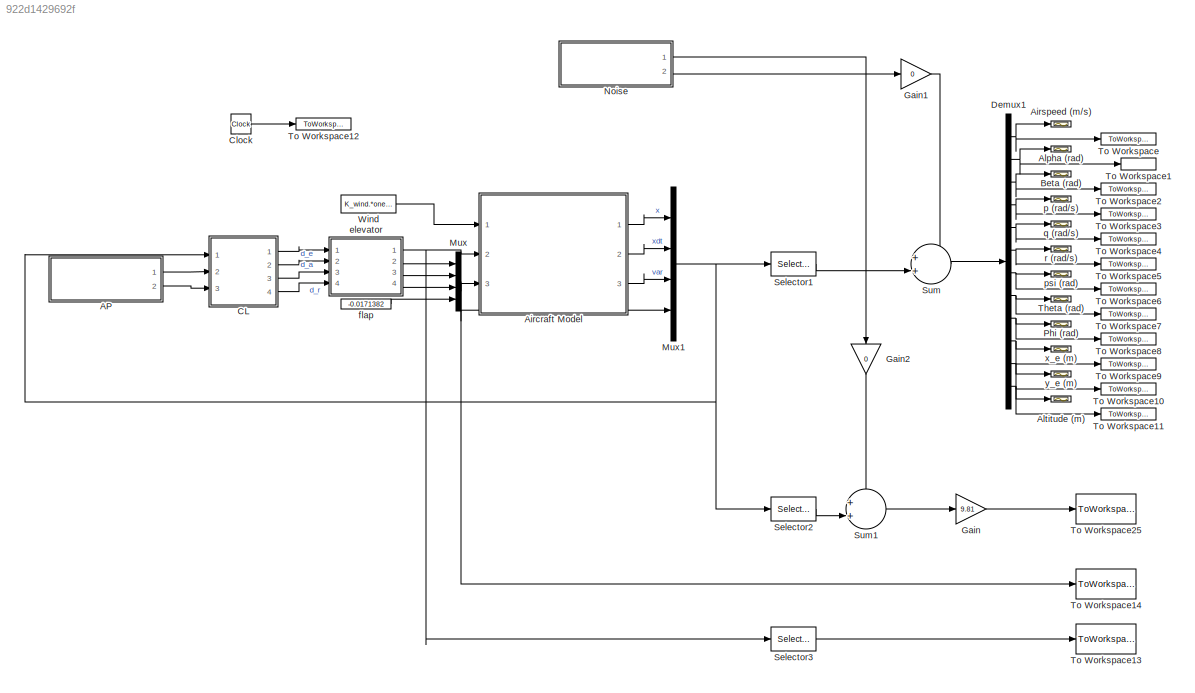
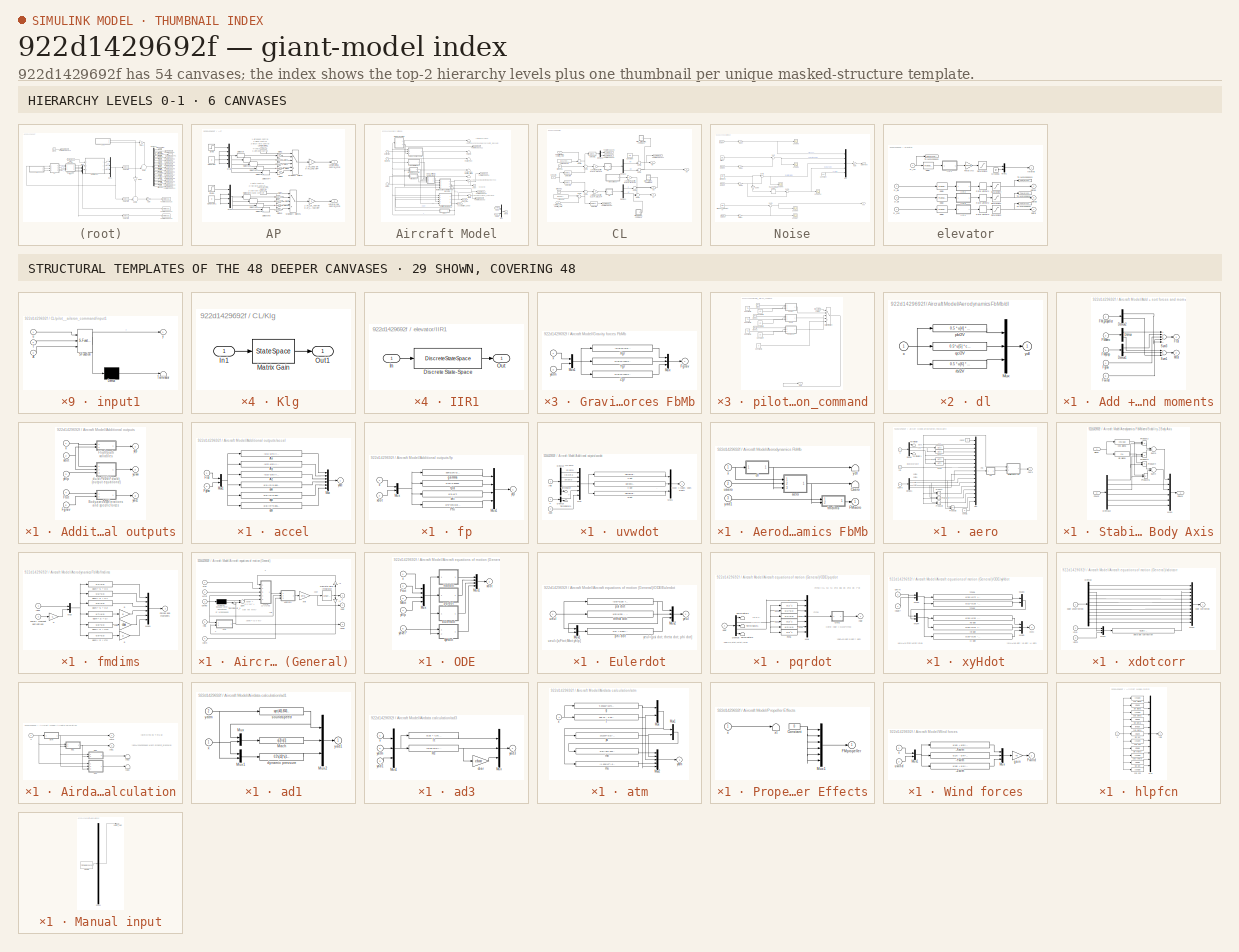
[diagram: thumbnail index - top-2 hierarchy levels (6 canvases) + 29 structural-template representatives of the remaining 48 canvases]
MODEL slx_922d1429692f
KIND model
CONFIG AbsTol = auto
CONFIG FixedStep = auto
CONFIG MaxStep = auto
CONFIG MinStep = auto
CONFIG RelTol = 1e-3
CONFIG SampleTimeConstraint = Unconstrained
CONFIG Solver = FixedStepDiscrete
CONFIG SolverMode = Auto
CONFIG SolverName = FixedStepDiscrete
CONFIG StartTime = 0.0
CONFIG StopTime = 50
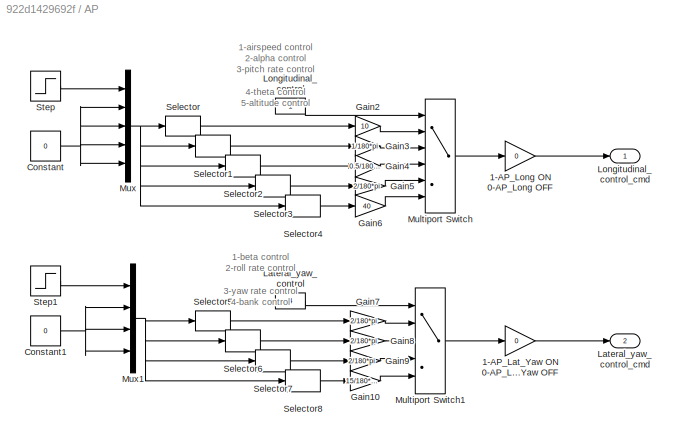
BLOCK [SubSystem] AP
  Ports = [0, 2]
  RequestExecContextInheritance = off
  Variant = off
BLOCK [Gain] AP/1-AP_Lat_Yaw ON 0-AP_Lat_Yaw OFF
  Gain = 0
  OutDataTypeStr = Inherit: Inherit via internal rule
  ParamDataTypeStr = Inherit: Inherit via internal rule
  SaturateOnIntegerOverflow = off
BLOCK [Gain] AP/1-AP_Long ON 0-AP_Long OFF
  Gain = 0
  OutDataTypeStr = Inherit: Inherit via internal rule
  ParamDataTypeStr = Inherit: Inherit via internal rule
  SaturateOnIntegerOverflow = off
BLOCK [Constant] AP/Constant
  Value = 0
BLOCK [Constant] AP/Constant1
  Value = 0
BLOCK [Gain] AP/Gain10
  Gain = 15/180*pi
  OutDataTypeStr = Inherit: Inherit via internal rule
  ParamDataTypeStr = Inherit: Inherit via internal rule
  SaturateOnIntegerOverflow = off
BLOCK [Gain] AP/Gain2
  Gain = 10
  OutDataTypeStr = Inherit: Inherit via internal rule
  ParamDataTypeStr = Inherit: Inherit via internal rule
  SaturateOnIntegerOverflow = off
BLOCK [Gain] AP/Gain3
  Gain = 1/180*pi
  OutDataTypeStr = Inherit: Inherit via internal rule
  ParamDataTypeStr = Inherit: Inherit via internal rule
  SaturateOnIntegerOverflow = off
BLOCK [Gain] AP/Gain4
  Gain = 0.5/180*pi
  OutDataTypeStr = Inherit: Inherit via internal rule
  ParamDataTypeStr = Inherit: Inherit via internal rule
  SaturateOnIntegerOverflow = off
BLOCK [Gain] AP/Gain5
  Gain = 2/180*pi
  OutDataTypeStr = Inherit: Inherit via internal rule
  ParamDataTypeStr = Inherit: Inherit via internal rule
  SaturateOnIntegerOverflow = off
BLOCK [Gain] AP/Gain6
  Gain = 40
  OutDataTypeStr = Inherit: Inherit via internal rule
  ParamDataTypeStr = Inherit: Inherit via internal rule
  SaturateOnIntegerOverflow = off
BLOCK [Gain] AP/Gain7
  Gain = 2/180*pi
  OutDataTypeStr = Inherit: Inherit via internal rule
  ParamDataTypeStr = Inherit: Inherit via internal rule
  SaturateOnIntegerOverflow = off
BLOCK [Gain] AP/Gain8
  Gain = 2/180*pi
  OutDataTypeStr = Inherit: Inherit via internal rule
  ParamDataTypeStr = Inherit: Inherit via internal rule
  SaturateOnIntegerOverflow = off
BLOCK [Gain] AP/Gain9
  Gain = 2/180*pi
  OutDataTypeStr = Inherit: Inherit via internal rule
  ParamDataTypeStr = Inherit: Inherit via internal rule
  SaturateOnIntegerOverflow = off
BLOCK [Constant] AP/Lateral_yaw_control
  Value = 4
BLOCK [Outport] AP/Lateral_yaw_control_cmd
  IconDisplay = Port number
  Port = 2
BLOCK [Constant] AP/Longitudinal_control
BLOCK [Outport] AP/Longitudinal_control_cmd
  IconDisplay = Port number
BLOCK [MultiPortSwitch] AP/Multiport Switch
  InputSameDT = off
  Inputs = 5
  Ports = [6, 1]
  SaturateOnIntegerOverflow = off
BLOCK [MultiPortSwitch] AP/Multiport Switch1
  InputSameDT = off
  Inputs = 4
  Ports = [5, 1]
  SaturateOnIntegerOverflow = off
BLOCK [Mux] AP/Mux
  DisplayOption = bar
  Inputs = 5
  Ports = [5, 1]
BLOCK [Mux] AP/Mux1
  DisplayOption = bar
  Ports = [4, 1]
BLOCK [Selector] AP/Selector
  IndexOptions = Index vector (dialog)
  Indices = [1 2 3 4 5]
  InputPortWidth = 5
  OutputSizes = 1
  Ports = [1, 1]
BLOCK [Selector] AP/Selector1
  IndexOptions = Index vector (dialog)
  Indices = [2 1 3 4 5]
  InputPortWidth = 5
  OutputSizes = 1
  Ports = [1, 1]
BLOCK [Selector] AP/Selector2
  IndexOptions = Index vector (dialog)
  Indices = [3 2 1 4 5]
  InputPortWidth = 5
  OutputSizes = 1
  Ports = [1, 1]
BLOCK [Selector] AP/Selector3
  IndexOptions = Index vector (dialog)
  Indices = [4 2 3 1 5]
  InputPortWidth = 5
  OutputSizes = 1
  Ports = [1, 1]
BLOCK [Selector] AP/Selector4
  IndexOptions = Index vector (dialog)
  Indices = [5 2 3 4 1]
  InputPortWidth = 5
  OutputSizes = 1
  Ports = [1, 1]
BLOCK [Selector] AP/Selector5
  IndexOptions = Index vector (dialog)
  Indices = [1 2 3 4]
  InputPortWidth = 4
  OutputSizes = 1
  Ports = [1, 1]
BLOCK [Selector] AP/Selector6
  IndexOptions = Index vector (dialog)
  Indices = [2 1 3 4]
  InputPortWidth = 4
  OutputSizes = 1
  Ports = [1, 1]
BLOCK [Selector] AP/Selector7
  IndexOptions = Index vector (dialog)
  Indices = [3 2 1 4]
  InputPortWidth = 4
  OutputSizes = 1
  Ports = [1, 1]
BLOCK [Selector] AP/Selector8
  IndexOptions = Index vector (dialog)
  Indices = [4 2 3 1]
  InputPortWidth = 4
  OutputSizes = 1
  Ports = [1, 1]
BLOCK [Step] AP/Step
  SampleTime = 0
  Time = 20
BLOCK [Step] AP/Step1
  SampleTime = 0
  Time = 20
BLOCK [SubSystem] Aircraft Model
  AncestorBlock = airlib/DT-B747
  Ports = [3, 3]
  RequestExecContextInheritance = off
  ShowPortLabels = none
  Variant = off
BLOCK [Gain] Aircraft Model/ *1
BLOCK [Inport] Aircraft Model/ Vwind
  IconDisplay = Port number
BLOCK [Gain] Aircraft Model/*1
BLOCK [Goto] Aircraft Model/Acceleration_body
  GotoTag = acc
BLOCK [SubSystem] Aircraft Model/Add + sort forces and moments
  Ports = [5, 2]
  RequestExecContextInheritance = off
  ShowPortLabels = none
  Variant = off
BLOCK [Demux] Aircraft Model/Add + sort forces and moments/Demux
  Outputs = [3 3]
  Ports = [1, 2]
BLOCK [Demux] Aircraft Model/Add + sort forces and moments/Demux1
  Outputs = [3 3]
  Ports = [1, 2]
BLOCK [Demux] Aircraft Model/Add + sort forces and moments/Demux2
  Outputs = [3 3]
  Ports = [1, 2]
BLOCK [Inport] Aircraft Model/Add + sort forces and moments/FM_propeller
  IconDisplay = Port number
BLOCK [Inport] Aircraft Model/Add + sort forces and moments/FMaero
  IconDisplay = Port number
  Port = 2
BLOCK [Inport] Aircraft Model/Add + sort forces and moments/FMprop
  IconDisplay = Port number
  Port = 3
BLOCK [Inport] Aircraft Model/Add + sort forces and moments/Fgrav
  IconDisplay = Port number
  Port = 4
BLOCK [Outport] Aircraft Model/Add + sort forces and moments/Ftot
  IconDisplay = Port number
BLOCK [Inport] Aircraft Model/Add + sort forces and moments/Fwind
  IconDisplay = Port number
  Port = 5
BLOCK [Outport] Aircraft Model/Add + sort forces and moments/Mtot
  IconDisplay = Port number
  Port = 2
BLOCK [Sum] Aircraft Model/Add + sort forces and moments/Sum1
  Inputs = +++
  Ports = [3, 1]
BLOCK [Sum] Aircraft Model/Add + sort forces and moments/Sum3
  Inputs = +++++
  Ports = [5, 1]
BLOCK [SubSystem] Aircraft Model/Additional outputs
  Ports = [5, 3]
  RequestExecContextInheritance = off
  ShowPortLabels = none
  Variant = off
BLOCK [Inport] Aircraft Model/Additional outputs/Fgrav
  IconDisplay = Port number
  Port = 5
BLOCK [Inport] Aircraft Model/Additional outputs/Ftot
  IconDisplay = Port number
  Port = 4
BLOCK [SubSystem] Aircraft Model/Additional outputs/accel
  Ports = [2, 1]
  RequestExecContextInheritance = off
  ShowPortLabels = none
  Variant = off
BLOCK [Fcn] Aircraft Model/Additional outputs/accel/Ax
  Expr = (u[1]-u[4])/(m*9.80665)
BLOCK [Fcn] Aircraft Model/Additional outputs/accel/Ay
  Expr = (u[2]-u[5])/(m*9.80665)
BLOCK [Fcn] Aircraft Model/Additional outputs/accel/Az
  Expr = (u[3]-u[6])/(m*9.80665)
BLOCK [Inport] Aircraft Model/Additional outputs/accel/Fgrav
  IconDisplay = Port number
  Port = 2
BLOCK [Inport] Aircraft Model/Additional outputs/accel/Ftot
  IconDisplay = Port number
BLOCK [Mux] Aircraft Model/Additional outputs/accel/Mux
  Inputs = 6
  Ports = [6, 1]
BLOCK [Mux] Aircraft Model/Additional outputs/accel/Mux1
  Inputs = [3 3]
  Ports = [2, 1]
BLOCK [Fcn] Aircraft Model/Additional outputs/accel/axk
  Expr = u[1]/(m*9.80665)
BLOCK [Fcn] Aircraft Model/Additional outputs/accel/ayk
  Expr = u[2]/(m*9.80665)
BLOCK [Fcn] Aircraft Model/Additional outputs/accel/azk
  Expr = u[3]/(m*9.80665)
BLOCK [Outport] Aircraft Model/Additional outputs/accel/yacc
  IconDisplay = Port number
BLOCK [SubSystem] Aircraft Model/Additional outputs/fp
  Ports = [2, 1]
  RequestExecContextInheritance = off
  ShowPortLabels = none
  Variant = off
BLOCK [Mux] Aircraft Model/Additional outputs/fp/Mux
  Inputs = [12 12]
  Ports = [2, 1]
BLOCK [Mux] Aircraft Model/Additional outputs/fp/Mux1
  Ports = [4, 1]
BLOCK [Fcn] Aircraft Model/Additional outputs/fp/Phi
  Expr = u[9]*cos(u[8]-alpha0)
BLOCK [Fcn] Aircraft Model/Additional outputs/fp/chi
  Expr = u[3]+u[7]
BLOCK [Fcn] Aircraft Model/Additional outputs/fp/fpa
  Expr = u[13]/9.80665
BLOCK [Fcn] Aircraft Model/Additional outputs/fp/gamma
  Expr = asin(u[24]/u[1])
BLOCK [Inport] Aircraft Model/Additional outputs/fp/x
  IconDisplay = Port number
BLOCK [Inport] Aircraft Model/Additional outputs/fp/xdot
  IconDisplay = Port number
  Port = 2
BLOCK [Outport] Aircraft Model/Additional outputs/fp/yfp
  IconDisplay = Port number
BLOCK [SubSystem] Aircraft Model/Additional outputs/uvwdot
  Ports = [3, 1]
  RequestExecContextInheritance = off
  ShowPortLabels = none
  Variant = off
BLOCK [Demux] Aircraft Model/Additional outputs/uvwdot/DeMux
  Outputs = [1 1 1 1 7]
  Ports = [1, 5]
BLOCK [Demux] Aircraft Model/Additional outputs/uvwdot/Demux
  Outputs = [1 11]
  Ports = [1, 2]
BLOCK [Mux] Aircraft Model/Additional outputs/uvwdot/Mux
  Inputs = [1 1 1 1 1 12]
  Ports = [6, 1]
BLOCK [Mux] Aircraft Model/Additional outputs/uvwdot/Mux1
  Inputs = 3
  Ports = [3, 1]
BLOCK [Terminator] Aircraft Model/Additional outputs/uvwdot/Terminator
BLOCK [Terminator] Aircraft Model/Additional outputs/uvwdot/Terminator1
BLOCK [Fcn] Aircraft Model/Additional outputs/uvwdot/u dot
  Expr = u[6]*u[1]*u[3] - u[5]*(u[7]*u[2]*u[3] + u[8]*u[1]*u[4])
BLOCK [Fcn] Aircraft Model/Additional outputs/uvwdot/v dot
  Expr = u[6]*u[4] + u[5]*u[3]*u[8]
BLOCK [Fcn] Aircraft Model/Additional outputs/uvwdot/wdot
  Expr = u[6]*u[2]*u[3] + u[5]*(u[7]*u[1]*u[3] - u[8]*u[2]*u[4])
BLOCK [Inport] Aircraft Model/Additional outputs/uvwdot/x
  IconDisplay = Port number
BLOCK [Inport] Aircraft Model/Additional outputs/uvwdot/xdot
  IconDisplay = Port number
  Port = 2
BLOCK [Inport] Aircraft Model/Additional outputs/uvwdot/yhlp
  IconDisplay = Port number
  Port = 3
BLOCK [Outport] Aircraft Model/Additional outputs/uvwdot/yuvw = [udot; vdot; wdot]
  IconDisplay = Port number
BLOCK [Inport] Aircraft Model/Additional outputs/x
  IconDisplay = Port number
BLOCK [Inport] Aircraft Model/Additional outputs/xdot
  IconDisplay = Port number
  Port = 2
BLOCK [Outport] Aircraft Model/Additional outputs/yacc
  IconDisplay = Port number
  Port = 3
BLOCK [Outport] Aircraft Model/Additional outputs/yfp
  IconDisplay = Port number
BLOCK [Inport] Aircraft Model/Additional outputs/yhlp
  IconDisplay = Port number
  Port = 3
BLOCK [Outport] Aircraft Model/Additional outputs/yuvw
  IconDisplay = Port number
  Port = 2
BLOCK [SubSystem] Aircraft Model/Aerodynamics FbMb
  Ports = [3, 1]
  RequestExecContextInheritance = off
  ShowPortLabels = none
  Variant = off
BLOCK [Terminator] Aircraft Model/Aerodynamics FbMb/Caero
BLOCK [Outport] Aircraft Model/Aerodynamics FbMb/FMaero
  IconDisplay = Port number
BLOCK [SubSystem] Aircraft Model/Aerodynamics FbMb/aero
  Ports = [3, 1]
  RequestExecContextInheritance = off
  ShowPortLabels = none
  Variant = off
BLOCK [SubSystem] Aircraft Model/Aerodynamics FbMb/aero/AM 
  Ports = [1, 1]
  RequestExecContextInheritance = off
  Variant = off
BLOCK [Inport] Aircraft Model/Aerodynamics FbMb/aero/AM /In1
  IconDisplay = Port number
BLOCK [StateSpace] Aircraft Model/Aerodynamics FbMb/aero/AM /Matrix Gain
  A = []
  B = []
  C = []
  D = M
  Ports = [1, 1]
  X0 = 0
BLOCK [Outport] Aircraft Model/Aerodynamics FbMb/aero/AM /Out1
  IconDisplay = Port number
BLOCK [Outport] Aircraft Model/Aerodynamics FbMb/aero/Caero
  IconDisplay = Port number
BLOCK [Demux] Aircraft Model/Aerodynamics FbMb/aero/Demux
  Outputs = [1 1 1 9]
  Ports = [1, 4]
BLOCK [Demux] Aircraft Model/Aerodynamics FbMb/aero/Demux1
  Ports = [1, 4]
BLOCK [Fcn] Aircraft Model/Aerodynamics FbMb/aero/Fcn
  Expr = u[1]^2
BLOCK [Fcn] Aircraft Model/Aerodynamics FbMb/aero/Fcn1
  Expr = u[1]^3
BLOCK [Fcn] Aircraft Model/Aerodynamics FbMb/aero/Fcn2
  Expr = u[1]^2
BLOCK [Fcn] Aircraft Model/Aerodynamics FbMb/aero/Fcn3
  Expr = u[1]^3
BLOCK [Mux] Aircraft Model/Aerodynamics FbMb/aero/Mux
  Inputs = [1 1 1 1 1 1 1 3 1 1 1 1 1 1 1 1 1]
  Ports = [17, 1]
BLOCK [Product] Aircraft Model/Aerodynamics FbMb/aero/Product
  Ports = [2, 1]
BLOCK [Product] Aircraft Model/Aerodynamics FbMb/aero/Product1
  Ports = [2, 1]
BLOCK [Product] Aircraft Model/Aerodynamics FbMb/aero/Product2
  Ports = [2, 1]
BLOCK [Product] Aircraft Model/Aerodynamics FbMb/aero/Product3
  Ports = [2, 1]
BLOCK [SubSystem] Aircraft Model/Aerodynamics FbMb/aero/Stability 2 Body Axis
  Ports = [2, 1]
  RequestExecContextInheritance = off
  Variant = off
BLOCK [Demux] Aircraft Model/Aerodynamics FbMb/aero/Stability 2 Body Axis/Demux2
  Outputs = 6
  Ports = [1, 6]
BLOCK [Outport] Aircraft Model/Aerodynamics FbMb/aero/Stability 2 Body Axis/FbMb
  IconDisplay = Port number
BLOCK [Inport] Aircraft Model/Aerodynamics FbMb/aero/Stability 2 Body Axis/FsMb
  IconDisplay = Port number
  Port = 2
BLOCK [Mux] Aircraft Model/Aerodynamics FbMb/aero/Stability 2 Body Axis/Mux1
  Inputs = 6
  Ports = [6, 1]
BLOCK [Product] Aircraft Model/Aerodynamics FbMb/aero/Stability 2 Body Axis/Product2
  Ports = [2, 1]
BLOCK [Product] Aircraft Model/Aerodynamics FbMb/aero/Stability 2 Body Axis/Product3
  Ports = [2, 1]
BLOCK [Product] Aircraft Model/Aerodynamics FbMb/aero/Stability 2 Body Axis/Product4
  Ports = [2, 1]
BLOCK [Product] Aircraft Model/Aerodynamics FbMb/aero/Stability 2 Body Axis/Product5
  Ports = [2, 1]
BLOCK [Sum] Aircraft Model/Aerodynamics FbMb/aero/Stability 2 Body Axis/Sum3
  IconShape = round
  Inputs = -+
  Ports = [2, 1]
BLOCK [Sum] Aircraft Model/Aerodynamics FbMb/aero/Stability 2 Body Axis/Sum4
  IconShape = round
  Inputs = --
  Ports = [2, 1]
BLOCK [Inport] Aircraft Model/Aerodynamics FbMb/aero/Stability 2 Body Axis/alpha
  IconDisplay = Port number
BLOCK [Fcn] Aircraft Model/Aerodynamics FbMb/aero/Stability 2 Body Axis/cos alpha
  Expr = cos(u[1])
BLOCK [Fcn] Aircraft Model/Aerodynamics FbMb/aero/Stability 2 Body Axis/sin alpha
BLOCK [Terminator] Aircraft Model/Aerodynamics FbMb/aero/Terminator
BLOCK [Terminator] Aircraft Model/Aerodynamics FbMb/aero/Terminator1
BLOCK [Constant] Aircraft Model/Aerodynamics FbMb/aero/const
BLOCK [Constant] Aircraft Model/Aerodynamics FbMb/aero/const1
  Value = 0
BLOCK [Inport] Aircraft Model/Aerodynamics FbMb/aero/uaero
  IconDisplay = Port number
  Port = 2
BLOCK [Inport] Aircraft Model/Aerodynamics FbMb/aero/x
  IconDisplay = Port number
BLOCK [Inport] Aircraft Model/Aerodynamics FbMb/aero/ydl
  IconDisplay = Port number
  Port = 3
BLOCK [SubSystem] Aircraft Model/Aerodynamics FbMb/dl
  Ports = [1, 1]
  RequestExecContextInheritance = off
  ShowPortLabels = none
  Variant = off
BLOCK [Mux] Aircraft Model/Aerodynamics FbMb/dl/Mux
  Inputs = 3
  Ports = [3, 1]
BLOCK [Fcn] Aircraft Model/Aerodynamics FbMb/dl/pb//2V
  Expr = 0.5 * u[4] * b / u[1]
BLOCK [Fcn] Aircraft Model/Aerodynamics FbMb/dl/qc//2V
  Expr = 0.5* u[5] * cbar / u[1]
BLOCK [Fcn] Aircraft Model/Aerodynamics FbMb/dl/rb//2V
  Expr = 0.5 * u[6] * b / u[1]
BLOCK [Inport] Aircraft Model/Aerodynamics FbMb/dl/x
  IconDisplay = Port number
BLOCK [Outport] Aircraft Model/Aerodynamics FbMb/dl/ydl
  IconDisplay = Port number
BLOCK [SubSystem] Aircraft Model/Aerodynamics FbMb/fmdims
  Ports = [2, 1]
  RequestExecContextInheritance = off
  ShowPortLabels = none
  Variant = off
BLOCK [Inport] Aircraft Model/Aerodynamics FbMb/fmdims/Force // moment derivatives
  IconDisplay = Port number
  Port = 2
BLOCK [Outport] Aircraft Model/Aerodynamics FbMb/fmdims/Forces and moments
  IconDisplay = Port number
BLOCK [Mux] Aircraft Model/Aerodynamics FbMb/fmdims/Mux
  Inputs = [3 6]
  Ports = [2, 1]
BLOCK [Mux] Aircraft Model/Aerodynamics FbMb/fmdims/Mux1
  Inputs = 6
  Ports = [6, 1]
BLOCK [Gain] Aircraft Model/Aerodynamics FbMb/fmdims/S
  Gain = S
BLOCK [Gain] Aircraft Model/Aerodynamics FbMb/fmdims/b
  Gain = b
BLOCK [Gain] Aircraft Model/Aerodynamics FbMb/fmdims/b 
  Gain = b
BLOCK [Gain] Aircraft Model/Aerodynamics FbMb/fmdims/cbar
  Gain = cbar
BLOCK [Fcn] Aircraft Model/Aerodynamics FbMb/fmdims/qdyn * S * CX
  Expr = u[4]*u[3]
BLOCK [Fcn] Aircraft Model/Aerodynamics FbMb/fmdims/qdyn * S * CY
  Expr = u[5]*u[3]
BLOCK [Fcn] Aircraft Model/Aerodynamics FbMb/fmdims/qdyn * S * CZ
  Expr = u[6]*u[3]
BLOCK [Fcn] Aircraft Model/Aerodynamics FbMb/fmdims/qdyn * S * Cl
  Expr = u[7]*u[3]
BLOCK [Fcn] Aircraft Model/Aerodynamics FbMb/fmdims/qdyn * S * Cm
  Expr = u[8]*u[3]
BLOCK [Fcn] Aircraft Model/Aerodynamics FbMb/fmdims/qdyn * S * Cn
  Expr = u[9]*u[3]
BLOCK [Inport] Aircraft Model/Aerodynamics FbMb/fmdims/yad1
  IconDisplay = Port number
BLOCK [Inport] Aircraft Model/Aerodynamics FbMb/uaero
  IconDisplay = Port number
  Port = 2
BLOCK [Inport] Aircraft Model/Aerodynamics FbMb/x
  IconDisplay = Port number
BLOCK [Inport] Aircraft Model/Aerodynamics FbMb/yad1
  IconDisplay = Port number
  Port = 3
BLOCK [Terminator] Aircraft Model/Aerodynamics FbMb/ydl
BLOCK [SubSystem] Aircraft Model/Aircraft equations of motion (General)
  Ports = [5, 3]
  RequestExecContextInheritance = off
  ShowPortLabels = none
  Variant = off
BLOCK [Gain] Aircraft Model/Aircraft equations of motion (General)/ *1
BLOCK [Gain] Aircraft Model/Aircraft equations of motion (General)/*1
BLOCK [Demux] Aircraft Model/Aircraft equations of motion (General)/Demux
  Outputs = [3 3]
  Ports = [1, 2]
BLOCK [DiscreteIntegrator] Aircraft Model/Aircraft equations of motion (General)/Discrete-Time Integrator
  ICPrevOutput = DiscIntNeverNeededParam
  ICPrevScaledInput = DiscIntNeverNeededParam
  InitialCondition = x0
  Ports = [1, 1]
  SampleTime = T
BLOCK [Inport] Aircraft Model/Aircraft equations of motion (General)/Ftot
  IconDisplay = Port number
BLOCK [Inport] Aircraft Model/Aircraft equations of motion (General)/Mtot
  IconDisplay = Port number
  Port = 2
BLOCK [SubSystem] Aircraft Model/Aircraft equations of motion (General)/ODE
  Ports = [5, 1]
  RequestExecContextInheritance = off
  ShowPortLabels = none
  Variant = off
BLOCK [SubSystem] Aircraft Model/Aircraft equations of motion (General)/ODE/Eulerdot
  Ports = [1, 1]
  RequestExecContextInheritance = off
  ShowPortLabels = none
  Variant = off
BLOCK [Mux] Aircraft Model/Aircraft equations of motion (General)/ODE/Eulerdot/Mux1
  Inputs = [29 1]
  Ports = [2, 1]
BLOCK [Mux] Aircraft Model/Aircraft equations of motion (General)/ODE/Eulerdot/Mux2
  Inputs = 3
  Ports = [3, 1]
BLOCK [Fcn] Aircraft Model/Aircraft equations of motion (General)/ODE/Eulerdot/phi dot
  Expr = u[4] + u[30]*u[26]
BLOCK [Fcn] Aircraft Model/Aircraft equations of motion (General)/ODE/Eulerdot/psi dot
  Expr = (u[5]*u[28] + u[6]*u[29])/u[27]
BLOCK [Fcn] Aircraft Model/Aircraft equations of motion (General)/ODE/Eulerdot/theta dot
  Expr = u[5]*u[29] - u[6]*u[28]
BLOCK [Inport] Aircraft Model/Aircraft equations of motion (General)/ODE/Eulerdot/ueul
  IconDisplay = Port number
BLOCK [Outport] Aircraft Model/Aircraft equations of motion (General)/ODE/Eulerdot/yeul
  IconDisplay = Port number
BLOCK [Inport] Aircraft Model/Aircraft equations of motion (General)/ODE/Ftot
  IconDisplay = Port number
  Port = 2
BLOCK [Inport] Aircraft Model/Aircraft equations of motion (General)/ODE/Mtot
  IconDisplay = Port number
  Port = 3
BLOCK [Mux] Aircraft Model/Aircraft equations of motion (General)/ODE/Mux
  Inputs = [12 3 3 11]
  Ports = [4, 1]
BLOCK [Mux] Aircraft Model/Aircraft equations of motion (General)/ODE/Mux1
  Inputs = [3 3 3 3]
  Ports = [4, 1]
BLOCK [SubSystem] Aircraft Model/Aircraft equations of motion (General)/ODE/Vabdot
  Ports = [1, 1]
  RequestExecContextInheritance = off
  ShowPortLabels = none
  Variant = off
BLOCK [Mux] Aircraft Model/Aircraft equations of motion (General)/ODE/Vabdot/Mux2
  Inputs = 3
  Ports = [3, 1]
BLOCK [Fcn] Aircraft Model/Aircraft equations of motion (General)/ODE/Vabdot/V dot
  Expr = (u[13]*u[19]*u[21]+u[14]*u[22]+u[15]*u[20]*u[21])/m
BLOCK [Fcn] Aircraft Model/Aircraft equations of motion (General)/ODE/Vabdot/alpha dot
  Expr = (-u[13]*u[20]+u[15]*u[19])/(m*u[1]*u[21]) - u[23]*(u[4]*u[19]+u[6]*u[20]) + u[5]
BLOCK [Fcn] Aircraft Model/Aircraft equations of motion (General)/ODE/Vabdot/beta dot
  Expr = (-u[13]*u[19]*u[22]+u[14]*u[21]-u[15]*u[20]*u[22])/(m*u[1]) + u[4]*u[20] - u[6]*u[19]
BLOCK [Inport] Aircraft Model/Aircraft equations of motion (General)/ODE/Vabdot/uVab
  IconDisplay = Port number
BLOCK [Outport] Aircraft Model/Aircraft equations of motion (General)/ODE/Vabdot/yVab
  IconDisplay = Port number
BLOCK [SubSystem] Aircraft Model/Aircraft equations of motion (General)/ODE/pqrdot
  Ports = [1, 1]
  RequestExecContextInheritance = off
  ShowPortLabels = none
  Variant = off
BLOCK [Demux] Aircraft Model/Aircraft equations of motion (General)/ODE/pqrdot/Demux
  Outputs = [3 3 9 3 11]
  Ports = [1, 5]
BLOCK [Fcn] Aircraft Model/Aircraft equations of motion (General)/ODE/pqrdot/Fcn
  Expr = u[1]^2
BLOCK [Fcn] Aircraft Model/Aircraft equations of motion (General)/ODE/pqrdot/Fcn1
  Expr = u[1]*u[2]
BLOCK [Fcn] Aircraft Model/Aircraft equations of motion (General)/ODE/pqrdot/Fcn2
  Expr = u[1]*u[3]
BLOCK [Fcn] Aircraft Model/Aircraft equations of motion (General)/ODE/pqrdot/Fcn3
  Expr = u[2]^2
BLOCK [Fcn] Aircraft Model/Aircraft equations of motion (General)/ODE/pqrdot/Fcn4
  Expr = u[2]*u[3]
BLOCK [Fcn] Aircraft Model/Aircraft equations of motion (General)/ODE/pqrdot/Fcn5
  Expr = u[3]^2
BLOCK [SubSystem] Aircraft Model/Aircraft equations of motion (General)/ODE/pqrdot/GM2 
  Ports = [1, 1]
  RequestExecContextInheritance = off
  Variant = off
BLOCK [Inport] Aircraft Model/Aircraft equations of motion (General)/ODE/pqrdot/GM2 /In1
  IconDisplay = Port number
BLOCK [StateSpace] Aircraft Model/Aircraft equations of motion (General)/ODE/pqrdot/GM2 /Matrix Gain
  A = []
  B = []
  C = []
  D = M
  Ports = [1, 1]
  X0 = 0
BLOCK [Outport] Aircraft Model/Aircraft equations of motion (General)/ODE/pqrdot/GM2 /Out1
  IconDisplay = Port number
BLOCK [Mux] Aircraft Model/Aircraft equations of motion (General)/ODE/pqrdot/Mux
  Inputs = [3 1 1 1 1 1 1]
  Ports = [7, 1]
BLOCK [Terminator] Aircraft Model/Aircraft equations of motion (General)/ODE/pqrdot/Terminator1
BLOCK [Terminator] Aircraft Model/Aircraft equations of motion (General)/ODE/pqrdot/Terminator2
BLOCK [Terminator] Aircraft Model/Aircraft equations of motion (General)/ODE/pqrdot/Terminator3
BLOCK [Inport] Aircraft Model/Aircraft equations of motion (General)/ODE/pqrdot/upqr
  IconDisplay = Port number
BLOCK [Outport] Aircraft Model/Aircraft equations of motion (General)/ODE/pqrdot/ypqr
  IconDisplay = Port number
BLOCK [Inport] Aircraft Model/Aircraft equations of motion (General)/ODE/x
  IconDisplay = Port number
BLOCK [Outport] Aircraft Model/Aircraft equations of motion (General)/ODE/xdot
  IconDisplay = Port number
BLOCK [SubSystem] Aircraft Model/Aircraft equations of motion (General)/ODE/xyHdot
  Ports = [2, 1]
  RequestExecContextInheritance = off
  ShowPortLabels = none
  Variant = off
BLOCK [Fcn] Aircraft Model/Aircraft equations of motion (General)/ODE/xyHdot/H dot
  Expr = u[30]*u[26] - (u[31]*u[28]+u[32]*u[29])*u[27]
BLOCK [Mux] Aircraft Model/Aircraft equations of motion (General)/ODE/xyHdot/Mux2
  Inputs = [29 3]
  Ports = [2, 1]
BLOCK [Mux] Aircraft Model/Aircraft equations of motion (General)/ODE/xyHdot/Mux3
  Inputs = 2
  Ports = [2, 1]
BLOCK [Mux] Aircraft Model/Aircraft equations of motion (General)/ODE/xyHdot/Mux4
  Inputs = [29 2]
  Ports = [2, 1]
BLOCK [Mux] Aircraft Model/Aircraft equations of motion (General)/ODE/xyHdot/Mux5
  Inputs = 3
  Ports = [3, 1]
BLOCK [Fcn] Aircraft Model/Aircraft equations of motion (General)/ODE/xyHdot/tmp1
  Expr = u[30]*u[27] + (u[31]*u[28]+u[32]*u[29])*u[26]
BLOCK [Fcn] Aircraft Model/Aircraft equations of motion (General)/ODE/xyHdot/tmp2
  Expr = u[31]*u[29] - u[32]*u[28]
BLOCK [Inport] Aircraft Model/Aircraft equations of motion (General)/ODE/xyHdot/uxYH
  IconDisplay = Port number
  Port = 2
BLOCK [Fcn] Aircraft Model/Aircraft equations of motion (General)/ODE/xyHdot/xe dot
  Expr = u[30]*u[25] - u[31]*u[24]
BLOCK [Inport] Aircraft Model/Aircraft equations of motion (General)/ODE/xyHdot/ybvel*
  IconDisplay = Port number
BLOCK [Fcn] Aircraft Model/Aircraft equations of motion (General)/ODE/xyHdot/ye dot
  Expr = u[30]*u[24] + u[31]*u[25]
BLOCK [Outport] Aircraft Model/Aircraft equations of motion (General)/ODE/xyHdot/yxyH
  IconDisplay = Port number
BLOCK [Inport] Aircraft Model/Aircraft equations of motion (General)/ODE/ybvel*
  IconDisplay = Port number
  Port = 5
BLOCK [Inport] Aircraft Model/Aircraft equations of motion (General)/ODE/yhlp
  IconDisplay = Port number
  Port = 4
BLOCK [Sum] Aircraft Model/Aircraft equations of motion (General)/Sum
  Ports = [2, 1]
BLOCK [Terminator] Aircraft Model/Aircraft equations of motion (General)/Terminator_1
BLOCK [SubSystem] Aircraft Model/Aircraft equations of motion (General)/uvw
  Ports = [2, 1]
  RequestExecContextInheritance = off
  ShowPortLabels = none
  Variant = off
BLOCK [Mux] Aircraft Model/Aircraft equations of motion (General)/uvw/Mux
  Inputs = 3
  Ports = [3, 1]
BLOCK [Mux] Aircraft Model/Aircraft equations of motion (General)/uvw/Mux1
  Inputs = [12 11]
  Ports = [2, 1]
BLOCK [Fcn] Aircraft Model/Aircraft equations of motion (General)/uvw/u
  Expr = u[1]*u[13]*u[15]
BLOCK [Fcn] Aircraft Model/Aircraft equations of motion (General)/uvw/v
  Expr = u[1]*u[16]
BLOCK [Fcn] Aircraft Model/Aircraft equations of motion (General)/uvw/w
  Expr = u[1]*u[14]*u[15]
BLOCK [Inport] Aircraft Model/Aircraft equations of motion (General)/uvw/x
  IconDisplay = Port number
  Port = 2
BLOCK [Outport] Aircraft Model/Aircraft equations of motion (General)/uvw/ybvel
  IconDisplay = Port number
BLOCK [Inport] Aircraft Model/Aircraft equations of motion (General)/uvw/yhlp
  IconDisplay = Port number
BLOCK [Inport] Aircraft Model/Aircraft equations of motion (General)/uwind
  IconDisplay = Port number
  Port = 3
BLOCK [Outport] Aircraft Model/Aircraft equations of motion (General)/x
  IconDisplay = Port number
BLOCK [Outport] Aircraft Model/Aircraft equations of motion (General)/xdot
  IconDisplay = Port number
  Port = 2
BLOCK [SubSystem] Aircraft Model/Aircraft equations of motion (General)/xdotcorr
  Ports = [3, 1]
  RequestExecContextInheritance = off
  ShowPortLabels = none
  Variant = off
BLOCK [Demux] Aircraft Model/Aircraft equations of motion (General)/xdotcorr/Demux
  Outputs = 12
  Ports = [1, 12]
BLOCK [Mux] Aircraft Model/Aircraft equations of motion (General)/xdotcorr/Mux1
  Inputs = 12
  Ports = [12, 1]
BLOCK [Mux] Aircraft Model/Aircraft equations of motion (General)/xdotcorr/Mux2
  Inputs = [11 1 5]
  Ports = [3, 1]
BLOCK [Fcn] Aircraft Model/Aircraft equations of motion (General)/xdotcorr/beta dot correction
  Expr = u[12] / (1 - (u[3]*u[13]*b*S*CYbdot)/(4*m))
BLOCK [Outport] Aircraft Model/Aircraft equations of motion (General)/xdotcorr/xdot corrected
  IconDisplay = Port number
BLOCK [Inport] Aircraft Model/Aircraft equations of motion (General)/xdotcorr/xdot uncorrected
  IconDisplay = Port number
BLOCK [Inport] Aircraft Model/Aircraft equations of motion (General)/xdotcorr/yatm
  IconDisplay = Port number
  Port = 3
BLOCK [Inport] Aircraft Model/Aircraft equations of motion (General)/xdotcorr/yhlp
  IconDisplay = Port number
  Port = 2
BLOCK [Gain] Aircraft Model/Aircraft equations of motion (General)/xfix
  Gain = xfix
BLOCK [Inport] Aircraft Model/Aircraft equations of motion (General)/yatm
  IconDisplay = Port number
  Port = 4
BLOCK [Outport] Aircraft Model/Aircraft equations of motion (General)/ybvel
  IconDisplay = Port number
  Port = 3
BLOCK [Inport] Aircraft Model/Aircraft equations of motion (General)/yhlp
  IconDisplay = Port number
  Port = 5
BLOCK [SubSystem] Aircraft Model/Airdata calculation
  Ports = [1, 2]
  RequestExecContextInheritance = off
  ShowPortLabels = none
  Variant = off
BLOCK [SubSystem] Aircraft Model/Airdata calculation/ad1
  Ports = [2, 1]
  RequestExecContextInheritance = off
  ShowPortLabels = none
  Variant = off
BLOCK [Fcn] Aircraft Model/Airdata calculation/ad1/Mach
  Expr = u[2]/u[1]
BLOCK [Mux] Aircraft Model/Airdata calculation/ad1/Mux
  Inputs = [1 12]
  Ports = [2, 1]
BLOCK [Mux] Aircraft Model/Airdata calculation/ad1/Mux1
  Inputs = [12 5]
  Ports = [2, 1]
BLOCK [Mux] Aircraft Model/Airdata calculation/ad1/Mux2
  Inputs = 3
  Ports = [3, 1]
BLOCK [Fcn] Aircraft Model/Airdata calculation/ad1/dynamic pressure
  Expr = 0.5*u[13]*u[1]^2
BLOCK [Fcn] Aircraft Model/Airdata calculation/ad1/soundspeed
  Expr = sqrt(401.8743*u[3])
BLOCK [Inport] Aircraft Model/Airdata calculation/ad1/x
  IconDisplay = Port number
BLOCK [Outport] Aircraft Model/Airdata calculation/ad1/yad1
  IconDisplay = Port number
BLOCK [Inport] Aircraft Model/Airdata calculation/ad1/yatm
  IconDisplay = Port number
  Port = 2
BLOCK [SubSystem] Aircraft Model/Airdata calculation/ad2
  Ports = [2, 1]
  RequestExecContextInheritance = off
  ShowPortLabels = none
  Variant = off
BLOCK [Mux] Aircraft Model/Airdata calculation/ad2/Mux
  Inputs = [5 3]
  Ports = [2, 1]
BLOCK [Mux] Aircraft Model/Airdata calculation/ad2/Mux1
  Inputs = 3
  Ports = [3, 1]
BLOCK [Fcn] Aircraft Model/Airdata calculation/ad2/Vc
  Expr = sqrt(579000*((1+u[1]/101325)^(1/3.5)-1))
BLOCK [Fcn] Aircraft Model/Airdata calculation/ad2/Ve
  Expr = sqrt(u[8] * 1.63265)
BLOCK [Fcn] Aircraft Model/Airdata calculation/ad2/qc
  Expr = u[2] * ((1+0.2*u[7]^2)^3.5-1)
BLOCK [Inport] Aircraft Model/Airdata calculation/ad2/yad1
  IconDisplay = Port number
  Port = 2
BLOCK [Outport] Aircraft Model/Airdata calculation/ad2/yad2
  IconDisplay = Port number
BLOCK [Inport] Aircraft Model/Airdata calculation/ad2/yatm
  IconDisplay = Port number
BLOCK [SubSystem] Aircraft Model/Airdata calculation/ad3
  Ports = [3, 1]
  RequestExecContextInheritance = off
  ShowPortLabels = none
  Variant = off
BLOCK [Mux] Aircraft Model/Airdata calculation/ad3/Mux
  Inputs = 3
  Ports = [3, 1]
BLOCK [Mux] Aircraft Model/Airdata calculation/ad3/Mux1
  Inputs = [12 5 3]
  Ports = [3, 1]
BLOCK [Fcn] Aircraft Model/Airdata calculation/ad3/Re
  Expr = (u[13]*u[1])/u[16]
BLOCK [Fcn] Aircraft Model/Airdata calculation/ad3/Tt
  Expr = u[15] * (1+0.2*u[19]^2)
BLOCK [Gain] Aircraft Model/Airdata calculation/ad3/cbar
  Gain = cbar
BLOCK [Inport] Aircraft Model/Airdata calculation/ad3/x
  IconDisplay = Port number
BLOCK [Inport] Aircraft Model/Airdata calculation/ad3/yad1
  IconDisplay = Port number
  Port = 3
BLOCK [Outport] Aircraft Model/Airdata calculation/ad3/yad3
  IconDisplay = Port number
BLOCK [Inport] Aircraft Model/Airdata calculation/ad3/yatm
  IconDisplay = Port number
  Port = 2
BLOCK [SubSystem] Aircraft Model/Airdata calculation/atm
  Ports = [1, 1]
  RequestExecContextInheritance = off
  ShowPortLabels = none
  Variant = off
BLOCK [Mux] Aircraft Model/Airdata calculation/atm/Mux
  Inputs = 2
  Ports = [2, 1]
BLOCK [Mux] Aircraft Model/Airdata calculation/atm/Mux1
  Inputs = [2 1]
  Ports = [2, 1]
BLOCK [Mux] Aircraft Model/Airdata calculation/atm/Mux2
  Inputs = 5
  Ports = [5, 1]
BLOCK [Fcn] Aircraft Model/Airdata calculation/atm/T
  Expr = 288.15 - 0.0065*u[12]
BLOCK [Fcn] Aircraft Model/Airdata calculation/atm/g
  Expr = 9.80665*(6371020/(6371020+u[12]))^2
BLOCK [Fcn] Aircraft Model/Airdata calculation/atm/mu
  Expr = (1.458*10^(-6)*u[2]^1.5)/(u[2]+110.4)
BLOCK [Fcn] Aircraft Model/Airdata calculation/atm/ps
  Expr = 101325*(u[2]/288.15)^(u[1]/1.86584)
BLOCK [Fcn] Aircraft Model/Airdata calculation/atm/rho
  Expr = u[3]/(287.053*u[2])
BLOCK [Inport] Aircraft Model/Airdata calculation/atm/x
  IconDisplay = Port number
BLOCK [Outport] Aircraft Model/Airdata calculation/atm/yatm
  IconDisplay = Port number
BLOCK [Inport] Aircraft Model/Airdata calculation/x
  IconDisplay = Port number
BLOCK [Outport] Aircraft Model/Airdata calculation/yad1
  IconDisplay = Port number
  Port = 2
BLOCK [Terminator] Aircraft Model/Airdata calculation/yad2
BLOCK [Terminator] Aircraft Model/Airdata calculation/yad3
BLOCK [Outport] Aircraft Model/Airdata calculation/yatm
  IconDisplay = Port number
BLOCK [Terminator] Aircraft Model/FMaero
BLOCK [Terminator] Aircraft Model/FbMb_ext
BLOCK [Terminator] Aircraft Model/FbMb_grav
BLOCK [Terminator] Aircraft Model/FbMb_wind
BLOCK [From] Aircraft Model/From3
  CloseFcn = tagdialog Close
  GotoTag = uvwd
BLOCK [From] Aircraft Model/From5
  CloseFcn = tagdialog Close
  GotoTag = acc
BLOCK [SubSystem] Aircraft Model/Gravity forces FbMb
  Ports = [2, 1]
  RequestExecContextInheritance = off
  ShowPortLabels = none
  Variant = off
BLOCK [Outport] Aircraft Model/Gravity forces FbMb/Fgrav
  IconDisplay = Port number
BLOCK [Mux] Aircraft Model/Gravity forces FbMb/Mux
  Inputs = 3
  Ports = [3, 1]
BLOCK [Mux] Aircraft Model/Gravity forces FbMb/Mux1
  Inputs = [12 5]
  Ports = [2, 1]
BLOCK [Fcn] Aircraft Model/Gravity forces FbMb/Xgr
  Expr = -m*u[17]*sin(u[8])
BLOCK [Fcn] Aircraft Model/Gravity forces FbMb/Ygr
  Expr = m*u[17]*cos(u[8])*sin(u[9])
BLOCK [Fcn] Aircraft Model/Gravity forces FbMb/Zgr
  Expr = m*u[17]*cos(u[8])*cos(u[9])
BLOCK [Inport] Aircraft Model/Gravity forces FbMb/x
  IconDisplay = Port number
BLOCK [Inport] Aircraft Model/Gravity forces FbMb/yatm
  IconDisplay = Port number
  Port = 2
BLOCK [Mux] Aircraft Model/Mux
  DisplayOption = bar
  Inputs = [3 6]
  Ports = [2, 1]
BLOCK [SubSystem] Aircraft Model/Propeller Effects
  Ports = [1, 1]
  RequestExecContextInheritance = off
  Variant = off
BLOCK [Constant] Aircraft Model/Propeller Effects/Constant
  Value = 0
BLOCK [Outport] Aircraft Model/Propeller Effects/FMpropeller
  IconDisplay = Port number
BLOCK [Mux] Aircraft Model/Propeller Effects/Mux1
  Inputs = 6
  Ports = [6, 1]
BLOCK [Inport] Aircraft Model/Propeller Effects/x
  IconDisplay = Port number
BLOCK [Terminator] Aircraft Model/Propeller Effects/xt
BLOCK [ToWorkspace] Aircraft Model/To Workspace1
  MaxDataPoints = inf
  Ports = [1]
  SampleTime = -1
  VariableName = x_dot
BLOCK [ToWorkspace] Aircraft Model/To Workspace11
  MaxDataPoints = inf
  Ports = [1]
  SampleTime = -1
  VariableName = yad1
BLOCK [ToWorkspace] Aircraft Model/To Workspace2
  MaxDataPoints = inf
  Ports = [1]
  SampleTime = -1
  VariableName = Vb
BLOCK [ToWorkspace] Aircraft Model/To Workspace3
  MaxDataPoints = inf
  Ports = [1]
  SampleTime = -1
  VariableName = Vb_dot
BLOCK [SubSystem] Aircraft Model/Wind forces
  Ports = [2, 1]
  RequestExecContextInheritance = off
  ShowPortLabels = none
  Variant = off
BLOCK [Fcn] Aircraft Model/Wind forces/-Xw//m
  Expr = u[16] + u[5]*u[15] - u[6]*u[14]
BLOCK [Fcn] Aircraft Model/Wind forces/-Yw//m
  Expr = u[17] - u[4]*u[15] + u[6]*u[13]
BLOCK [Fcn] Aircraft Model/Wind forces/-Zw//m
  Expr = u[18] + u[4]*u[14] - u[5]*u[13]
BLOCK [Outport] Aircraft Model/Wind forces/Fwind
  IconDisplay = Port number
BLOCK [Mux] Aircraft Model/Wind forces/Mux
  Inputs = 3
  Ports = [3, 1]
BLOCK [Mux] Aircraft Model/Wind forces/Mux1
  Inputs = [12 6]
  Ports = [2, 1]
BLOCK [Gain] Aircraft Model/Wind forces/gain
  Gain = -m
BLOCK [Inport] Aircraft Model/Wind forces/uwind
  IconDisplay = Port number
  Port = 2
BLOCK [Inport] Aircraft Model/Wind forces/x
  IconDisplay = Port number
BLOCK [Inport] Aircraft Model/deflection
  IconDisplay = Port number
  Port = 3
BLOCK [Terminator] Aircraft Model/fpath
BLOCK [SubSystem] Aircraft Model/hlpfcn
  Ports = [1, 1]
  RequestExecContextInheritance = off
  ShowPortLabels = none
  Variant = off
BLOCK [Mux] Aircraft Model/hlpfcn/Mux
  Inputs = 11
  Ports = [11, 1]
BLOCK [Fcn] Aircraft Model/hlpfcn/cos alpha
  Expr = cos(u[2])
BLOCK [Fcn] Aircraft Model/hlpfcn/cos beta
  Expr = cos(u[3])
BLOCK [Fcn] Aircraft Model/hlpfcn/cos phi
  Expr = cos(u[9])
BLOCK [Fcn] Aircraft Model/hlpfcn/cos psi
  Expr = cos(u[7])
BLOCK [Fcn] Aircraft Model/hlpfcn/cos theta
  Expr = cos(u[8])
BLOCK [Fcn] Aircraft Model/hlpfcn/sin alpha
  Expr = sin(u[2])
BLOCK [Fcn] Aircraft Model/hlpfcn/sin beta
  Expr = sin(u[3])
BLOCK [Fcn] Aircraft Model/hlpfcn/sin phi
  Expr = sin(u[9])
BLOCK [Fcn] Aircraft Model/hlpfcn/sin psi
  Expr = sin(u[7])
BLOCK [Fcn] Aircraft Model/hlpfcn/sin theta
  Expr = sin(u[8])
BLOCK [Fcn] Aircraft Model/hlpfcn/tan beta
  Expr = tan(u[3])
BLOCK [Inport] Aircraft Model/hlpfcn/x
  IconDisplay = Port number
BLOCK [Outport] Aircraft Model/hlpfcn/yhlp
  IconDisplay = Port number
BLOCK [Outport] Aircraft Model/others
  IconDisplay = Port number
  Port = 3
BLOCK [Inport] Aircraft Model/thrust FM
  IconDisplay = Port number
  Port = 2
BLOCK [Goto] Aircraft Model/uvw_dot
  GotoTag = uvwd
BLOCK [Outport] Aircraft Model/x
  IconDisplay = Port number
BLOCK [Outport] Aircraft Model/xdot
  IconDisplay = Port number
  Port = 2
BLOCK [Terminator] Aircraft Model/yatm
BLOCK [Scope] Airspeed (m//s)
  Ports = [1]
  ScopeSpecificationString = Simulink.scopes.TimeScopeBlockCfg('CurrentConfiguration', extmgr.ConfigurationSet(extmgr.Configuration('Core','General UI',true),extmgr.Configuration('Core','Source UI',true),extmgr.Configuration('Sources','WiredSimulink',true,'DataLoggingVariableName','ScopeData5','DataLoggingSaveFormat','StructureWithTime','DataLoggingLimitDataPoints',true,'DataLoggingDecimation','1','DataLoggingDecimateData',tr...<+1779ch>
BLOCK [Scope] Alpha (rad)
  Ports = [1]
  ScopeSpecificationString = Simulink.scopes.TimeScopeBlockCfg('CurrentConfiguration', extmgr.ConfigurationSet(extmgr.Configuration('Core','General UI',true),extmgr.Configuration('Core','Source UI',true),extmgr.Configuration('Sources','WiredSimulink',true,'DataLoggingVariableName','ScopeData4','DataLoggingSaveFormat','StructureWithTime','DataLoggingLimitDataPoints',true,'DataLoggingDecimation','1','DataLoggingDecimateData',tr...<+1802ch>
BLOCK [Scope] Altitude (m)
  Ports = [1]
  ScopeSpecificationString = Simulink.scopes.TimeScopeBlockCfg('CurrentConfiguration', extmgr.ConfigurationSet(extmgr.Configuration('Core','General UI',true),extmgr.Configuration('Core','Source UI',true),extmgr.Configuration('Sources','WiredSimulink',true,'DataLoggingVariableName','ScopeData15','DataLoggingSaveFormat','StructureWithTime','DataLoggingLimitDataPoints',true,'DataLoggingDecimation','1','DataLoggingDecimateData',t...<+1758ch>
BLOCK [Scope] Beta (rad)
  Ports = [1]
  ScopeSpecificationString = Simulink.scopes.TimeScopeBlockCfg('CurrentConfiguration', extmgr.ConfigurationSet(extmgr.Configuration('Core','General UI',true),extmgr.Configuration('Core','Source UI',true),extmgr.Configuration('Sources','WiredSimulink',true,'DataLoggingVariableName','ScopeData6','DataLoggingSaveFormat','StructureWithTime','DataLoggingLimitDataPoints',true,'DataLoggingDecimation','1','DataLoggingDecimateData',tr...<+1799ch>
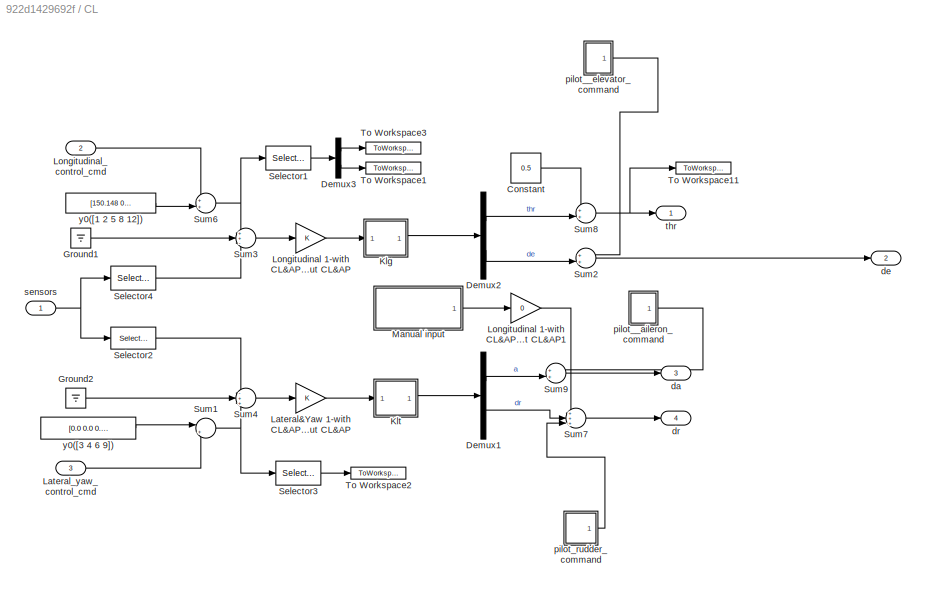
BLOCK [SubSystem] CL
  Ports = [3, 4]
  RequestExecContextInheritance = off
  Variant = off
BLOCK [Constant] CL/Constant
  Value = 0.5
BLOCK [Demux] CL/Demux1
  Outputs = 2
  Ports = [1, 2]
BLOCK [Demux] CL/Demux2
  Outputs = 2
  Ports = [1, 2]
BLOCK [Demux] CL/Demux3
  Outputs = 2
  Ports = [1, 2]
BLOCK [Ground] CL/Ground1
BLOCK [Ground] CL/Ground2
BLOCK [SubSystem] CL/Klg 
  Ports = [1, 1]
  RequestExecContextInheritance = off
  Variant = off
BLOCK [Inport] CL/Klg /In1
  IconDisplay = Port number
BLOCK [StateSpace] CL/Klg /Matrix Gain
  A = []
  B = []
  C = []
  D = M
  Ports = [1, 1]
  X0 = 0
BLOCK [Outport] CL/Klg /Out1
  IconDisplay = Port number
BLOCK [SubSystem] CL/Klt 
  Ports = [1, 1]
  RequestExecContextInheritance = off
  Variant = off
BLOCK [Inport] CL/Klt /In1
  IconDisplay = Port number
BLOCK [StateSpace] CL/Klt /Matrix Gain
  A = []
  B = []
  C = []
  D = M
  Ports = [1, 1]
  X0 = 0
BLOCK [Outport] CL/Klt /Out1
  IconDisplay = Port number
BLOCK [Gain] CL/Lateral&Yaw 1-with CL&AP 0-without CL&AP
  OutDataTypeStr = Inherit: Inherit via internal rule
  ParamDataTypeStr = Inherit: Inherit via internal rule
  SaturateOnIntegerOverflow = off
BLOCK [Inport] CL/Lateral_yaw_control_cmd
  IconDisplay = Port number
  Port = 3
BLOCK [Gain] CL/Longitudinal 1-with CL&AP 0-without CL&AP
  OutDataTypeStr = Inherit: Inherit via internal rule
  ParamDataTypeStr = Inherit: Inherit via internal rule
  SaturateOnIntegerOverflow = off
BLOCK [Gain] CL/Longitudinal 1-with CL&AP 0-without CL&AP1
  Gain = 0
  OutDataTypeStr = Inherit: Inherit via internal rule
  ParamDataTypeStr = Inherit: Inherit via internal rule
  SaturateOnIntegerOverflow = off
BLOCK [Inport] CL/Longitudinal_control_cmd
  IconDisplay = Port number
  Port = 2
BLOCK [SubSystem] CL/Manual input
  ClipboardFcn = sigbuilder_block('clipboard');
  CloseFcn = sigbuilder_block('close');
  ContinueFcn = sigbuilder_block('continue');
  CopyFcn = sigbuilder_block('copy');
  DeleteFcn = sigbuilder_block('delete');
  LoadFcn = sigbuilder_block('load');
  MaskHideContents = on
  ModelCloseFcn = sigbuilder_block('modelClose');
  NameChangeFcn = sigbuilder_block('namechange');
  OpenFcn = sigbuilder_block('open',[301.5 193.5 843.75 381.75 ]);
  PauseFcn = sigbuilder_block('pause');
  Ports = [0, 1]
  PreSaveFcn = sigbuilder_block('preSave');
  RequestExecContextInheritance = off
  StartFcn = sigbuilder_block('start');
  StopFcn = sigbuilder_block('stop');
  Tag = STV Subsys
  Variant = off
BLOCK [Demux] CL/Manual input/Demux
  Outputs = 1
  Ports = [1, 1]
  Tag = STV Demux
BLOCK [FromWorkspace] CL/Manual input/FromWs
  SampleTime = 0
  Tag = STV FromWs
  VariableName = tuvar
  ZeroCross = on
BLOCK [Outport] CL/Manual input/deltae_CMD
  IconDisplay = Port number
  Tag = STV Outport
BLOCK [Selector] CL/Selector1
  IndexOptions = Index vector (dialog)
  Indices = [1 5]
  InputPortWidth = 5
  OutputSizes = 1
  Ports = [1, 1]
BLOCK [Selector] CL/Selector2
  IndexOptions = Index vector (dialog)
  Indices = [3 4 6 9]
  InputPortWidth = 37
  OutputSizes = 1
  Ports = [1, 1]
BLOCK [Selector] CL/Selector3
  IndexOptions = Index vector (dialog)
  Indices = [4]
  InputPortWidth = 4
  OutputSizes = 1
  Ports = [1, 1]
BLOCK [Selector] CL/Selector4
  IndexOptions = Index vector (dialog)
  Indices = [1 2 5 8 12]
  InputPortWidth = 37
  OutputSizes = 1
  Ports = [1, 1]
BLOCK [Sum] CL/Sum1
  IconShape = round
  Inputs = |++
  Ports = [2, 1]
BLOCK [Sum] CL/Sum2
  IconShape = round
  Inputs = ++|
  Ports = [2, 1]
BLOCK [Sum] CL/Sum3
  IconShape = round
  Inputs = ++-
  Ports = [3, 1]
BLOCK [Sum] CL/Sum4
  IconShape = round
  Inputs = -++
  Ports = [3, 1]
BLOCK [Sum] CL/Sum6
  IconShape = round
  Inputs = ++|
  Ports = [2, 1]
BLOCK [Sum] CL/Sum7
  IconShape = round
  Inputs = +++|
  Ports = [3, 1]
BLOCK [Sum] CL/Sum8
  IconShape = round
  Inputs = ++|
  Ports = [2, 1]
BLOCK [Sum] CL/Sum9
  IconShape = round
  Inputs = ++|
  Ports = [2, 1]
BLOCK [ToWorkspace] CL/To Workspace1
  MaxDataPoints = inf
  Ports = [1]
  SampleTime = -1
  VariableName = altitude_cmd
BLOCK [ToWorkspace] CL/To Workspace11
  MaxDataPoints = inf
  Ports = [1]
  SampleTime = -1
  VariableName = thrust
BLOCK [ToWorkspace] CL/To Workspace2
  MaxDataPoints = inf
  Ports = [1]
  SampleTime = -1
  VariableName = bank_cmd
BLOCK [ToWorkspace] CL/To Workspace3
  MaxDataPoints = inf
  Ports = [1]
  SampleTime = -1
  VariableName = speed_cmd
BLOCK [Outport] CL/da
  IconDisplay = Port number
  Port = 3
BLOCK [Outport] CL/de
  IconDisplay = Port number
  Port = 2
BLOCK [Outport] CL/dr
  IconDisplay = Port number
  Port = 4
BLOCK [SubSystem] CL/pilot__aileron_command
  Ports = [0, 1]
  RequestExecContextInheritance = off
  Variant = off
BLOCK [Clock] CL/pilot__aileron_command/Clock
BLOCK [Clock] CL/pilot__aileron_command/Clock1
BLOCK [Clock] CL/pilot__aileron_command/Clock2
BLOCK [Constant] CL/pilot__aileron_command/Constant1
  Value = 0
BLOCK [Constant] CL/pilot__aileron_command/Constant2
  Value = Ta
BLOCK [Constant] CL/pilot__aileron_command/Constant3
  Value = Ta
BLOCK [Constant] CL/pilot__aileron_command/Constant4
  Value = Ta
BLOCK [Constant] CL/pilot__aileron_command/Constant5
  Value = Aa
BLOCK [Constant] CL/pilot__aileron_command/Constant6
  Value = Aa
BLOCK [Constant] CL/pilot__aileron_command/Constant7
  Value = Aa
BLOCK [Constant] CL/pilot__aileron_command/Lateral
  Value = test_aileron
BLOCK [MultiPortSwitch] CL/pilot__aileron_command/Multiport Switch
  InputSameDT = off
  Inputs = 4
  Ports = [5, 1]
  SaturateOnIntegerOverflow = off
BLOCK [Outport] CL/pilot__aileron_command/Out1
  IconDisplay = Port number
BLOCK [SubSystem] CL/pilot__aileron_command/input1
  ErrorFcn = Stateflow.Translate.translate
  PermitHierarchicalResolution = ExplicitOnly
  Ports = [3, 1]
  RequestExecContextInheritance = off
  SFBlockType = MATLAB Function
  TreatAsAtomicUnit = on
  Variant = off
BLOCK [Demux] CL/pilot__aileron_command/input1/ Demux 
  Outputs = 1
  Ports = [1, 1]
BLOCK [S-Function] CL/pilot__aileron_command/input1/ SFunction 
  EnableBusSupport = on
  FunctionName = sf_sfun
  PortCounts = [3 2]
  Ports = [3, 2]
  SFunctionDeploymentMode = off
  Tag = Stateflow S-Function model_plane_identification_script_v1 1
BLOCK [Terminator] CL/pilot__aileron_command/input1/ Terminator 
BLOCK [Inport] CL/pilot__aileron_command/input1/A
  IconDisplay = Port number
  Port = 3
BLOCK [Inport] CL/pilot__aileron_command/input1/T
  IconDisplay = Port number
  Port = 2
BLOCK [Inport] CL/pilot__aileron_command/input1/u
  IconDisplay = Port number
BLOCK [Outport] CL/pilot__aileron_command/input1/y
  IconDisplay = Port number
BLOCK [SubSystem] CL/pilot__aileron_command/input11
  ErrorFcn = Stateflow.Translate.translate
  PermitHierarchicalResolution = ExplicitOnly
  Ports = [3, 1]
  RequestExecContextInheritance = off
  SFBlockType = MATLAB Function
  TreatAsAtomicUnit = on
  Variant = off
BLOCK [Demux] CL/pilot__aileron_command/input11/ Demux 
  Outputs = 1
  Ports = [1, 1]
BLOCK [S-Function] CL/pilot__aileron_command/input11/ SFunction 
  EnableBusSupport = on
  FunctionName = sf_sfun
  PortCounts = [3 2]
  Ports = [3, 2]
  SFunctionDeploymentMode = off
  Tag = Stateflow S-Function model_plane_identification_script_v1 2
BLOCK [Terminator] CL/pilot__aileron_command/input11/ Terminator 
BLOCK [Inport] CL/pilot__aileron_command/input11/A
  IconDisplay = Port number
  Port = 3
BLOCK [Inport] CL/pilot__aileron_command/input11/T
  IconDisplay = Port number
  Port = 2
BLOCK [Inport] CL/pilot__aileron_command/input11/u
  IconDisplay = Port number
BLOCK [Outport] CL/pilot__aileron_command/input11/y
  IconDisplay = Port number
BLOCK [SubSystem] CL/pilot__aileron_command/input3211
  ErrorFcn = Stateflow.Translate.translate
  PermitHierarchicalResolution = ExplicitOnly
  Ports = [3, 1]
  RequestExecContextInheritance = off
  SFBlockType = MATLAB Function
  TreatAsAtomicUnit = on
  Variant = off
BLOCK [Demux] CL/pilot__aileron_command/input3211/ Demux 
  Outputs = 1
  Ports = [1, 1]
BLOCK [S-Function] CL/pilot__aileron_command/input3211/ SFunction 
  EnableBusSupport = on
  FunctionName = sf_sfun
  PortCounts = [3 2]
  Ports = [3, 2]
  SFunctionDeploymentMode = off
  Tag = Stateflow S-Function model_plane_identification_script_v1 3
BLOCK [Terminator] CL/pilot__aileron_command/input3211/ Terminator 
BLOCK [Inport] CL/pilot__aileron_command/input3211/A
  IconDisplay = Port number
  Port = 3
BLOCK [Inport] CL/pilot__aileron_command/input3211/T
  IconDisplay = Port number
  Port = 2
BLOCK [Inport] CL/pilot__aileron_command/input3211/u
  IconDisplay = Port number
BLOCK [Outport] CL/pilot__aileron_command/input3211/y
  IconDisplay = Port number
BLOCK [SubSystem] CL/pilot__elevator_command
  Ports = [0, 1]
  RequestExecContextInheritance = off
  Variant = off
BLOCK [Clock] CL/pilot__elevator_command/Clock
BLOCK [Clock] CL/pilot__elevator_command/Clock1
BLOCK [Clock] CL/pilot__elevator_command/Clock2
BLOCK [Constant] CL/pilot__elevator_command/Constant1
  Value = 0
BLOCK [Constant] CL/pilot__elevator_command/Constant2
  Value = Te
BLOCK [Constant] CL/pilot__elevator_command/Constant3
  Value = Te
BLOCK [Constant] CL/pilot__elevator_command/Constant4
  Value = Te
BLOCK [Constant] CL/pilot__elevator_command/Constant5
  Value = Ae
BLOCK [Constant] CL/pilot__elevator_command/Constant6
  Value = Ae
BLOCK [Constant] CL/pilot__elevator_command/Constant7
  Value = Ae
BLOCK [Constant] CL/pilot__elevator_command/Longitudinal
  Value = test_elevator
BLOCK [MultiPortSwitch] CL/pilot__elevator_command/Multiport Switch
  InputSameDT = off
  Inputs = 4
  Ports = [5, 1]
  SaturateOnIntegerOverflow = off
BLOCK [Outport] CL/pilot__elevator_command/Out1
  IconDisplay = Port number
BLOCK [SubSystem] CL/pilot__elevator_command/input11
  ErrorFcn = Stateflow.Translate.translate
  PermitHierarchicalResolution = ExplicitOnly
  Ports = [3, 1]
  RequestExecContextInheritance = off
  SFBlockType = MATLAB Function
  TreatAsAtomicUnit = on
  Variant = off
BLOCK [Demux] CL/pilot__elevator_command/input11/ Demux 
  Outputs = 1
  Ports = [1, 1]
BLOCK [S-Function] CL/pilot__elevator_command/input11/ SFunction 
  EnableBusSupport = on
  FunctionName = sf_sfun
  PortCounts = [3 2]
  Ports = [3, 2]
  SFunctionDeploymentMode = off
  Tag = Stateflow S-Function model_plane_identification_script_v1 8
BLOCK [Terminator] CL/pilot__elevator_command/input11/ Terminator 
BLOCK [Inport] CL/pilot__elevator_command/input11/A
  IconDisplay = Port number
  Port = 3
BLOCK [Inport] CL/pilot__elevator_command/input11/T
  IconDisplay = Port number
  Port = 2
BLOCK [Inport] CL/pilot__elevator_command/input11/u
  IconDisplay = Port number
BLOCK [Outport] CL/pilot__elevator_command/input11/y
  IconDisplay = Port number
BLOCK [SubSystem] CL/pilot__elevator_command/input211
  ErrorFcn = Stateflow.Translate.translate
  PermitHierarchicalResolution = ExplicitOnly
  Ports = [3, 1]
  RequestExecContextInheritance = off
  SFBlockType = MATLAB Function
  TreatAsAtomicUnit = on
  Variant = off
BLOCK [Demux] CL/pilot__elevator_command/input211/ Demux 
  Outputs = 1
  Ports = [1, 1]
BLOCK [S-Function] CL/pilot__elevator_command/input211/ SFunction 
  EnableBusSupport = on
  FunctionName = sf_sfun
  PortCounts = [3 2]
  Ports = [3, 2]
  SFunctionDeploymentMode = off
  Tag = Stateflow S-Function model_plane_identification_script_v1 7
BLOCK [Terminator] CL/pilot__elevator_command/input211/ Terminator 
BLOCK [Inport] CL/pilot__elevator_command/input211/A
  IconDisplay = Port number
  Port = 3
BLOCK [Inport] CL/pilot__elevator_command/input211/T
  IconDisplay = Port number
  Port = 2
BLOCK [Inport] CL/pilot__elevator_command/input211/u
  IconDisplay = Port number
BLOCK [Outport] CL/pilot__elevator_command/input211/y
  IconDisplay = Port number
BLOCK [SubSystem] CL/pilot__elevator_command/input3211
  ErrorFcn = Stateflow.Translate.translate
  PermitHierarchicalResolution = ExplicitOnly
  Ports = [3, 1]
  RequestExecContextInheritance = off
  SFBlockType = MATLAB Function
  TreatAsAtomicUnit = on
  Variant = off
BLOCK [Demux] CL/pilot__elevator_command/input3211/ Demux 
  Outputs = 1
  Ports = [1, 1]
BLOCK [S-Function] CL/pilot__elevator_command/input3211/ SFunction 
  EnableBusSupport = on
  FunctionName = sf_sfun
  PortCounts = [3 2]
  Ports = [3, 2]
  SFunctionDeploymentMode = off
  Tag = Stateflow S-Function model_plane_identification_script_v1 9
BLOCK [Terminator] CL/pilot__elevator_command/input3211/ Terminator 
BLOCK [Inport] CL/pilot__elevator_command/input3211/A
  IconDisplay = Port number
  Port = 3
BLOCK [Inport] CL/pilot__elevator_command/input3211/T
  IconDisplay = Port number
  Port = 2
BLOCK [Inport] CL/pilot__elevator_command/input3211/u
  IconDisplay = Port number
BLOCK [Outport] CL/pilot__elevator_command/input3211/y
  IconDisplay = Port number
BLOCK [SubSystem] CL/pilot_rudder_command
  Ports = [0, 1]
  RequestExecContextInheritance = off
  Variant = off
BLOCK [Clock] CL/pilot_rudder_command/Clock
BLOCK [Clock] CL/pilot_rudder_command/Clock1
BLOCK [Clock] CL/pilot_rudder_command/Clock2
BLOCK [Constant] CL/pilot_rudder_command/Constant1
  Value = 0
BLOCK [Constant] CL/pilot_rudder_command/Constant2
  Value = Tr
BLOCK [Constant] CL/pilot_rudder_command/Constant3
  Value = Tr
BLOCK [Constant] CL/pilot_rudder_command/Constant4
  Value = Tr
BLOCK [Constant] CL/pilot_rudder_command/Constant5
  Value = Ar
BLOCK [Constant] CL/pilot_rudder_command/Constant6
  Value = Ar
BLOCK [Constant] CL/pilot_rudder_command/Constant7
  Value = Ar
BLOCK [MultiPortSwitch] CL/pilot_rudder_command/Multiport Switch
  InputSameDT = off
  Inputs = 4
  Ports = [5, 1]
  SaturateOnIntegerOverflow = off
BLOCK [Outport] CL/pilot_rudder_command/Out1
  IconDisplay = Port number
BLOCK [SubSystem] CL/pilot_rudder_command/input1
  ErrorFcn = Stateflow.Translate.translate
  PermitHierarchicalResolution = ExplicitOnly
  Ports = [3, 1]
  RequestExecContextInheritance = off
  SFBlockType = MATLAB Function
  TreatAsAtomicUnit = on
  Variant = off
BLOCK [Demux] CL/pilot_rudder_command/input1/ Demux 
  Outputs = 1
  Ports = [1, 1]
BLOCK [S-Function] CL/pilot_rudder_command/input1/ SFunction 
  EnableBusSupport = on
  FunctionName = sf_sfun
  PortCounts = [3 2]
  Ports = [3, 2]
  SFunctionDeploymentMode = off
  Tag = Stateflow S-Function model_plane_identification_script_v1 4
BLOCK [Terminator] CL/pilot_rudder_command/input1/ Terminator 
BLOCK [Inport] CL/pilot_rudder_command/input1/A
  IconDisplay = Port number
  Port = 3
BLOCK [Inport] CL/pilot_rudder_command/input1/T
  IconDisplay = Port number
  Port = 2
BLOCK [Inport] CL/pilot_rudder_command/input1/u
  IconDisplay = Port number
BLOCK [Outport] CL/pilot_rudder_command/input1/y
  IconDisplay = Port number
BLOCK [SubSystem] CL/pilot_rudder_command/input11
  ErrorFcn = Stateflow.Translate.translate
  PermitHierarchicalResolution = ExplicitOnly
  Ports = [3, 1]
  RequestExecContextInheritance = off
  SFBlockType = MATLAB Function
  TreatAsAtomicUnit = on
  Variant = off
BLOCK [Demux] CL/pilot_rudder_command/input11/ Demux 
  Outputs = 1
  Ports = [1, 1]
BLOCK [S-Function] CL/pilot_rudder_command/input11/ SFunction 
  EnableBusSupport = on
  FunctionName = sf_sfun
  PortCounts = [3 2]
  Ports = [3, 2]
  SFunctionDeploymentMode = off
  Tag = Stateflow S-Function model_plane_identification_script_v1 5
BLOCK [Terminator] CL/pilot_rudder_command/input11/ Terminator 
BLOCK [Inport] CL/pilot_rudder_command/input11/A
  IconDisplay = Port number
  Port = 3
BLOCK [Inport] CL/pilot_rudder_command/input11/T
  IconDisplay = Port number
  Port = 2
BLOCK [Inport] CL/pilot_rudder_command/input11/u
  IconDisplay = Port number
BLOCK [Outport] CL/pilot_rudder_command/input11/y
  IconDisplay = Port number
BLOCK [SubSystem] CL/pilot_rudder_command/input3211
  ErrorFcn = Stateflow.Translate.translate
  PermitHierarchicalResolution = ExplicitOnly
  Ports = [3, 1]
  RequestExecContextInheritance = off
  SFBlockType = MATLAB Function
  TreatAsAtomicUnit = on
  Variant = off
BLOCK [Demux] CL/pilot_rudder_command/input3211/ Demux 
  Outputs = 1
  Ports = [1, 1]
BLOCK [S-Function] CL/pilot_rudder_command/input3211/ SFunction 
  EnableBusSupport = on
  FunctionName = sf_sfun
  PortCounts = [3 2]
  Ports = [3, 2]
  SFunctionDeploymentMode = off
  Tag = Stateflow S-Function model_plane_identification_script_v1 6
BLOCK [Terminator] CL/pilot_rudder_command/input3211/ Terminator 
BLOCK [Inport] CL/pilot_rudder_command/input3211/A
  IconDisplay = Port number
  Port = 3
BLOCK [Inport] CL/pilot_rudder_command/input3211/T
  IconDisplay = Port number
  Port = 2
BLOCK [Inport] CL/pilot_rudder_command/input3211/u
  IconDisplay = Port number
BLOCK [Outport] CL/pilot_rudder_command/input3211/y
  IconDisplay = Port number
BLOCK [Constant] CL/pilot_rudder_command/lateral
  Value = test_rudder
BLOCK [Inport] CL/sensors
  IconDisplay = Port number
BLOCK [Outport] CL/thr
  IconDisplay = Port number
BLOCK [Constant] CL/y0([1 2 5 8 12])
  Value = [150.148  0.0464959 0 0.0464959 61]
BLOCK [Constant] CL/y0([3 4 6 9])
  Value = [0.0 0.0 0.0 0.0]
BLOCK [Clock] Clock
  Decimation = 20
  DisplayTime = on
BLOCK [Demux] Demux1
  Outputs = 12
  Ports = [1, 12]
BLOCK [Gain] Gain
  Gain = 9.81
  OutDataTypeStr = Inherit: Inherit via internal rule
  ParamDataTypeStr = Inherit: Inherit via internal rule
  SaturateOnIntegerOverflow = off
BLOCK [Gain] Gain1
  Gain = 0
  OutDataTypeStr = Inherit: Inherit via internal rule
  ParamDataTypeStr = Inherit: Inherit via internal rule
  SaturateOnIntegerOverflow = off
BLOCK [Gain] Gain2
  Gain = 0
  OutDataTypeStr = Inherit: Inherit via internal rule
  ParamDataTypeStr = Inherit: Inherit via internal rule
  SaturateOnIntegerOverflow = off
BLOCK [Mux] Mux
  Ports = [4, 1]
BLOCK [Mux] Mux1
  Inputs = [12 12 9 4]
  Ports = [4, 1]
BLOCK [SubSystem] Noise
  Ports = [0, 2]
  RequestExecContextInheritance = off
  Variant = off
BLOCK [Outport] Noise/Acc 
  IconDisplay = Port number
BLOCK [Constant] Noise/Constant
  Value = [0,0,0]
BLOCK [Gain] Noise/Gain
  OutDataTypeStr = Inherit: Inherit via internal rule
  ParamDataTypeStr = Inherit: Inherit via internal rule
  SaturateOnIntegerOverflow = off
BLOCK [Gain] Noise/Gain1
  OutDataTypeStr = Inherit: Inherit via internal rule
  ParamDataTypeStr = Inherit: Inherit via internal rule
  SaturateOnIntegerOverflow = off
BLOCK [Gain] Noise/Gain2
  OutDataTypeStr = Inherit: Inherit via internal rule
  ParamDataTypeStr = Inherit: Inherit via internal rule
  SaturateOnIntegerOverflow = off
BLOCK [Gain] Noise/Gain3
  OutDataTypeStr = Inherit: Inherit via internal rule
  ParamDataTypeStr = Inherit: Inherit via internal rule
  SaturateOnIntegerOverflow = off
BLOCK [Gain] Noise/Gain4
  OutDataTypeStr = Inherit: Inherit via internal rule
  ParamDataTypeStr = Inherit: Inherit via internal rule
  SaturateOnIntegerOverflow = off
BLOCK [Gain] Noise/Gain5
  Gain = 0.1
  OutDataTypeStr = Inherit: Inherit via internal rule
  ParamDataTypeStr = Inherit: Inherit via internal rule
  SaturateOnIntegerOverflow = off
BLOCK [Mux] Noise/Mux
  DisplayOption = bar
  Inputs = 5
  Ports = [5, 1]
BLOCK [Reference] Noise/Noise1  REF=simulink/Sources/Band-Limited
White Noise
  Ports = [0, 1]
  SourceBlock = simulink/Sources/Band-Limited\nWhite Noise
  SourceType = Band-Limited White Noise.
BLOCK [Reference] Noise/Noise2  REF=simulink/Sources/Band-Limited
White Noise
  Ports = [0, 1]
  SourceBlock = simulink/Sources/Band-Limited\nWhite Noise
  SourceType = Band-Limited White Noise.
BLOCK [Reference] Noise/Noise3  REF=simulink/Sources/Band-Limited
White Noise
  Ports = [0, 1]
  SourceBlock = simulink/Sources/Band-Limited\nWhite Noise
  SourceType = Band-Limited White Noise.
BLOCK [Reference] Noise/Noise4  REF=simulink/Sources/Band-Limited
White Noise
  Ports = [0, 1]
  SourceBlock = simulink/Sources/Band-Limited\nWhite Noise
  SourceType = Band-Limited White Noise.
BLOCK [UniformRandomNumber] Noise/Offset
  Maximum = Offset_velocity_angles
  Minimum = -Offset_velocity_angles
  SampleTime = 0.02
  Seed = 1:2
BLOCK [UniformRandomNumber] Noise/Offset Accelerometer
  Maximum = Offset_Accelerometer
  Minimum = -Offset_Accelerometer
  SampleTime = 0.02
  Seed = 1:3
BLOCK [UniformRandomNumber] Noise/Offset gyro
  Maximum = Offset_gyro
  Minimum = -Offset_gyro
  SampleTime = 0.02
  Seed = 1:3
BLOCK [DiscreteIntegrator] Noise/Random Walk Euler1
  ICPrevOutput = DiscIntNeverNeededParam
  ICPrevScaledInput = DiscIntNeverNeededParam
  InitialConditionSetting = State (most efficient)
  Ports = [1, 1]
  SampleTime = -1
  gainval = 1
BLOCK [Scope] Noise/Scope10
  Ports = [1]
  ScopeSpecificationString = Simulink.scopes.TimeScopeBlockCfg('CurrentConfiguration', extmgr.ConfigurationSet(extmgr.Configuration('Core','General UI',true),extmgr.Configuration('Core','Source UI',true),extmgr.Configuration('Sources','WiredSimulink',true,'DataLoggingVariableName','ScopeData1'),extmgr.Configuration('Visuals','Time Domain',true,'SerializedDisplays',{struct('MinYLimReal','-0.00107','MaxYLimReal','0.0002','YLabe...<+1476ch>
BLOCK [Scope] Noise/Scope2
  Ports = [1]
  ScopeSpecificationString = Simulink.scopes.TimeScopeBlockCfg('CurrentConfiguration', extmgr.ConfigurationSet(extmgr.Configuration('Core','General UI',true),extmgr.Configuration('Core','Source UI',true),extmgr.Configuration('Sources','WiredSimulink',true,'DataLoggingVariableName','ScopeData2'),extmgr.Configuration('Visuals','Time Domain',true,'SerializedDisplays',{struct('MinYLimReal','-0.0023','MaxYLimReal','0.00227','YLabe...<+1463ch>
BLOCK [Scope] Noise/Scope5
  Ports = [1]
  ScopeSpecificationString = Simulink.scopes.TimeScopeBlockCfg('CurrentConfiguration', extmgr.ConfigurationSet(extmgr.Configuration('Core','General UI',true),extmgr.Configuration('Core','Source UI',true),extmgr.Configuration('Sources','WiredSimulink',true,'DataLoggingVariableName','ScopeData17'),extmgr.Configuration('Visuals','Time Domain',true,'SerializedDisplays',{struct('MinYLimReal','-0.00064','MaxYLimReal','0.00056','YLa...<+1455ch>
BLOCK [Scope] Noise/Scope6
  Ports = [1]
  ScopeSpecificationString = Simulink.scopes.TimeScopeBlockCfg('CurrentConfiguration', extmgr.ConfigurationSet(extmgr.Configuration('Core','General UI',true),extmgr.Configuration('Core','Source UI',true),extmgr.Configuration('Sources','WiredSimulink',true,'DataLoggingVariableName','ScopeData18'),extmgr.Configuration('Visuals','Time Domain',true,'SerializedDisplays',{struct('MinYLimReal','-0.00898','MaxYLimReal','0.00919','YLa...<+1485ch>
BLOCK [Scope] Noise/Scope7
  Ports = [1]
  ScopeSpecificationString = Simulink.scopes.TimeScopeBlockCfg('CurrentConfiguration', extmgr.ConfigurationSet(extmgr.Configuration('Core','General UI',true),extmgr.Configuration('Core','Source UI',true),extmgr.Configuration('Sources','WiredSimulink',true,'DataLoggingVariableName','ScopeData19'),extmgr.Configuration('Visuals','Time Domain',true,'SerializedDisplays',{struct('MinYLimReal','-0.00061','MaxYLimReal','0.0006','YLab...<+1434ch>
BLOCK [Scope] Noise/Scope9
  Ports = [1]
  ScopeSpecificationString = Simulink.scopes.TimeScopeBlockCfg('CurrentConfiguration', extmgr.ConfigurationSet(extmgr.Configuration('Core','General UI',true),extmgr.Configuration('Core','Source UI',true),extmgr.Configuration('Sources','WiredSimulink',true,'DataLoggingVariableName','ScopeData21'),extmgr.Configuration('Visuals','Time Domain',true,'SerializedDisplays',{struct('MinYLimReal','-0.44213','MaxYLimReal','0.45581','YLa...<+1439ch>
BLOCK [Outport] Noise/State noise
  IconDisplay = Port number
  Port = 2
BLOCK [Sum] Noise/Sum
  IconShape = round
  InputSameDT = off
  Inputs = |++
  OutDataTypeStr = Inherit: Inherit via internal rule
  Ports = [2, 1]
  SaturateOnIntegerOverflow = off
BLOCK [Sum] Noise/Sum1
  IconShape = round
  InputSameDT = off
  Inputs = |++
  OutDataTypeStr = Inherit: Inherit via internal rule
  Ports = [2, 1]
  SaturateOnIntegerOverflow = off
BLOCK [Sum] Noise/Sum2
  IconShape = round
  InputSameDT = off
  Inputs = |++
  OutDataTypeStr = Inherit: Inherit via internal rule
  Ports = [2, 1]
  SaturateOnIntegerOverflow = off
BLOCK [Sum] Noise/Sum3
  IconShape = round
  InputSameDT = off
  Inputs = |++
  OutDataTypeStr = Inherit: Inherit via internal rule
  Ports = [2, 1]
  SaturateOnIntegerOverflow = off
BLOCK [Scope] Phi (rad)
  Ports = [1]
  ScopeSpecificationString = Simulink.scopes.TimeScopeBlockCfg('CurrentConfiguration', extmgr.ConfigurationSet(extmgr.Configuration('Core','General UI',true),extmgr.Configuration('Core','Source UI',true),extmgr.Configuration('Sources','WiredSimulink',true,'DataLoggingVariableName','ScopeData12','DataLoggingSaveFormat','StructureWithTime','DataLoggingLimitDataPoints',true,'DataLoggingDecimation','1','DataLoggingDecimateData',t...<+1800ch>
BLOCK [Selector] Selector1
  IndexOptions = Index vector (dialog)
  Indices = 1:12
  InputPortWidth = 37
  OutputSizes = 1
  Ports = [1, 1]
BLOCK [Selector] Selector2
  IndexOptions = Index vector (dialog)
  Indices = 28:30
  InputPortWidth = 37
  OutputSizes = 1
  Ports = [1, 1]
BLOCK [Selector] Selector3
  IndexOptions = Index vector (dialog)
  Indices = 1
  InputPortWidth = 6
  OutputSizes = 1
  Ports = [1, 1]
BLOCK [Sum] Sum
  IconShape = round
  InputSameDT = off
  Inputs = ++|
  OutDataTypeStr = Inherit: Inherit via internal rule
  Ports = [2, 1]
  SaturateOnIntegerOverflow = off
BLOCK [Sum] Sum1
  IconShape = round
  InputSameDT = off
  Inputs = ++|
  OutDataTypeStr = Inherit: Inherit via internal rule
  Ports = [2, 1]
  SaturateOnIntegerOverflow = off
BLOCK [Scope] Theta (rad)
  Ports = [1]
  ScopeSpecificationString = Simulink.scopes.TimeScopeBlockCfg('CurrentConfiguration', extmgr.ConfigurationSet(extmgr.Configuration('Core','General UI',true),extmgr.Configuration('Core','Source UI',true),extmgr.Configuration('Sources','WiredSimulink',true,'DataLoggingVariableName','ScopeData11','DataLoggingSaveFormat','StructureWithTime','DataLoggingLimitDataPoints',true,'DataLoggingDecimation','1','DataLoggingDecimateData',t...<+1768ch>
BLOCK [ToWorkspace] To Workspace
  MaxDataPoints = inf
  Ports = [1]
  SampleTime = -1
  VariableName = airspeed
BLOCK [ToWorkspace] To Workspace1
  MaxDataPoints = inf
  Ports = [1]
  SampleTime = -1
  VariableName = alpha
BLOCK [ToWorkspace] To Workspace10
  MaxDataPoints = inf
  Ports = [1]
  SampleTime = -1
  VariableName = y_e
BLOCK [ToWorkspace] To Workspace11
  MaxDataPoints = inf
  Ports = [1]
  SampleTime = -1
  VariableName = altitude
BLOCK [ToWorkspace] To Workspace12
  MaxDataPoints = inf
  Ports = [1]
  SampleTime = -1
  VariableName = time
BLOCK [ToWorkspace] To Workspace13
  FixptAsFi = on
  MaxDataPoints = inf
  Ports = [1]
  SampleTime = -1
  Save2DSignal = 3-D array (concatenate along third dimension)
  SaveFormat = Structure With Time
  VariableName = Thrust
BLOCK [ToWorkspace] To Workspace14
  FixptAsFi = on
  MaxDataPoints = inf
  Ports = [1]
  SampleTime = -1
  Save2DSignal = 3-D array (concatenate along third dimension)
  SaveFormat = Structure With Time
  VariableName = ModelInput1
BLOCK [ToWorkspace] To Workspace2
  MaxDataPoints = inf
  Ports = [1]
  SampleTime = -1
  VariableName = beta
BLOCK [ToWorkspace] To Workspace25
  FixptAsFi = on
  MaxDataPoints = inf
  Ports = [1]
  SampleTime = -1
  Save2DSignal = 3-D array (concatenate along third dimension)
  VariableName = Acc
BLOCK [ToWorkspace] To Workspace3
  MaxDataPoints = inf
  Ports = [1]
  SampleTime = -1
  VariableName = p
BLOCK [ToWorkspace] To Workspace4
  MaxDataPoints = inf
  Ports = [1]
  SampleTime = -1
  VariableName = q
BLOCK [ToWorkspace] To Workspace5
  MaxDataPoints = inf
  Ports = [1]
  SampleTime = -1
  VariableName = r
BLOCK [ToWorkspace] To Workspace6
  MaxDataPoints = inf
  Ports = [1]
  SampleTime = -1
  VariableName = psi
BLOCK [ToWorkspace] To Workspace7
  MaxDataPoints = inf
  Ports = [1]
  SampleTime = -1
  VariableName = theta
BLOCK [ToWorkspace] To Workspace8
  MaxDataPoints = inf
  Ports = [1]
  SampleTime = -1
  VariableName = phi
BLOCK [ToWorkspace] To Workspace9
  MaxDataPoints = inf
  Ports = [1]
  SampleTime = -1
  VariableName = x_e
BLOCK [Constant] Wind
  Value = K_wind.*ones(6,1)
BLOCK [SubSystem] elevator
  Ports = [4, 4]
  RequestExecContextInheritance = off
  ShowPortLabels = none
  Variant = off
BLOCK [TransportDelay] elevator/ delay
  DelayTime = 0.03
  InitialOutput = -1.71374e-004
  Ports = [1, 1]
BLOCK [TransportDelay] elevator/ delay 
  DelayTime = 0.03
  InitialOutput = 0.490154
  Ports = [1, 1]
BLOCK [Inport] elevator/D_ail
  IconDisplay = Port number
  Port = 3
BLOCK [Inport] elevator/D_elv
  IconDisplay = Port number
  Port = 2
BLOCK [Inport] elevator/D_rud
  IconDisplay = Port number
  Port = 4
BLOCK [Inport] elevator/D_thr
  IconDisplay = Port number
BLOCK [Gain] elevator/Force [N]
  Gain = 368160
BLOCK [Ground] elevator/Ground1
BLOCK [SubSystem] elevator/IIR1
  Ports = [1, 1]
  RequestExecContextInheritance = off
  Variant = off
BLOCK [DiscreteStateSpace] elevator/IIR1/Discrete State-Space
  A = A
  B = B
  C = C
  D = D
  SampleTime = T
  X0 = x0
BLOCK [Inport] elevator/IIR1/In
  IconDisplay = Port number
BLOCK [Outport] elevator/IIR1/Out
  IconDisplay = Port number
BLOCK [SubSystem] elevator/IIR2
  Ports = [1, 1]
  RequestExecContextInheritance = off
  Variant = off
BLOCK [DiscreteStateSpace] elevator/IIR2/Discrete State-Space
  A = A
  B = B
  C = C
  D = D
  SampleTime = T
  X0 = x0
BLOCK [Inport] elevator/IIR2/In
  IconDisplay = Port number
BLOCK [Outport] elevator/IIR2/Out
  IconDisplay = Port number
BLOCK [SubSystem] elevator/IIR3
  Ports = [1, 1]
  RequestExecContextInheritance = off
  Variant = off
BLOCK [DiscreteStateSpace] elevator/IIR3/Discrete State-Space
  A = A
  B = B
  C = C
  D = D
  SampleTime = T
  X0 = x0
BLOCK [Inport] elevator/IIR3/In
  IconDisplay = Port number
BLOCK [Outport] elevator/IIR3/Out
  IconDisplay = Port number
BLOCK [SubSystem] elevator/IIR4
  Ports = [1, 1]
  RequestExecContextInheritance = off
  Variant = off
BLOCK [DiscreteStateSpace] elevator/IIR4/Discrete State-Space
  A = A
  B = B
  C = C
  D = D
  SampleTime = T
  X0 = x0
BLOCK [Inport] elevator/IIR4/In
  IconDisplay = Port number
BLOCK [Outport] elevator/IIR4/Out
  IconDisplay = Port number
BLOCK [Mux] elevator/Mux1
  Inputs = [1 5]
  Ports = [2, 1]
BLOCK [RateLimiter] elevator/Rate Limiter1
  FallingSlewLimit = -100*pi/180
  RisingSlewLimit = 100*pi/180
BLOCK [RateLimiter] elevator/Rate Limiter2
  FallingSlewLimit = -100*pi/180
  RisingSlewLimit = 100*pi/180
BLOCK [RateLimiter] elevator/Rate Limiter3
  FallingSlewLimit = -100*pi/180
  RisingSlewLimit = 100*pi/180
BLOCK [Saturate] elevator/Saturation1
  InputPortMap = u0
  LowerLimit = -20*pi/180
  Ports = [1, 1]
  UpperLimit = 20*pi/180
BLOCK [Saturate] elevator/Saturation2
  InputPortMap = u0
  LowerLimit = -20*pi/180
  Ports = [1, 1]
  UpperLimit = 20*pi/180
BLOCK [Saturate] elevator/Saturation3
  InputPortMap = u0
  LowerLimit = 0
  Ports = [1, 1]
  UpperLimit = 245440
BLOCK [Saturate] elevator/Saturation4
  InputPortMap = u0
  LowerLimit = -20*pi/180
  Ports = [1, 1]
  UpperLimit = 20*pi/180
BLOCK [ToWorkspace] elevator/To Workspace1
  MaxDataPoints = inf
  Ports = [1]
  SampleTime = -1
  VariableName = delta_a
BLOCK [ToWorkspace] elevator/To Workspace13
  MaxDataPoints = inf
  Ports = [1]
  SampleTime = -1
  VariableName = delta_e
BLOCK [ToWorkspace] elevator/To Workspace2
  MaxDataPoints = inf
  Ports = [1]
  SampleTime = -1
  VariableName = delta_r
BLOCK [ToWorkspace] elevator/To Workspace3
  MaxDataPoints = inf
  Ports = [1]
  SampleTime = -1
  VariableName = delta_th
BLOCK [TransportDelay] elevator/delay
  DelayTime = 0.03
  Ports = [1, 1]
BLOCK [TransportDelay] elevator/delay 
  DelayTime = 0.03
  Ports = [1, 1]
BLOCK [Outport] elevator/deltaa
  IconDisplay = Port number
  Port = 3
BLOCK [Outport] elevator/deltae
  IconDisplay = Port number
  Port = 2
BLOCK [Outport] elevator/deltar
  IconDisplay = Port number
  Port = 4
BLOCK [Outport] elevator/throttle
  IconDisplay = Port number
BLOCK [Constant] flap
  Value = -0.0171382
BLOCK [Scope] p (rad//s)
  Ports = [1]
  ScopeSpecificationString = Simulink.scopes.TimeScopeBlockCfg('CurrentConfiguration', extmgr.ConfigurationSet(extmgr.Configuration('Core','General UI',true),extmgr.Configuration('Core','Source UI',true),extmgr.Configuration('Sources','WiredSimulink',true,'DataLoggingVariableName','ScopeData7','DataLoggingSaveFormat','StructureWithTime','DataLoggingLimitDataPoints',true,'DataLoggingDecimation','1','DataLoggingDecimateData',tr...<+1799ch>
BLOCK [Scope] psi (rad)
  Ports = [1]
  ScopeSpecificationString = Simulink.scopes.TimeScopeBlockCfg('CurrentConfiguration', extmgr.ConfigurationSet(extmgr.Configuration('Core','General UI',true),extmgr.Configuration('Core','Source UI',true),extmgr.Configuration('Sources','WiredSimulink',true,'DataLoggingVariableName','ScopeData10','DataLoggingSaveFormat','StructureWithTime','DataLoggingLimitDataPoints',true,'DataLoggingDecimation','1','DataLoggingDecimateData',t...<+1775ch>
BLOCK [Scope] q (rad//s)
  Ports = [1]
  ScopeSpecificationString = Simulink.scopes.TimeScopeBlockCfg('CurrentConfiguration', extmgr.ConfigurationSet(extmgr.Configuration('Core','General UI',true),extmgr.Configuration('Core','Source UI',true),extmgr.Configuration('Sources','WiredSimulink',true,'DataLoggingVariableName','ScopeData8','DataLoggingSaveFormat','StructureWithTime','DataLoggingLimitDataPoints',true,'DataLoggingDecimation','1','DataLoggingDecimateData',tr...<+1824ch>
BLOCK [Scope] r (rad//s)
  Ports = [1]
  ScopeSpecificationString = Simulink.scopes.TimeScopeBlockCfg('CurrentConfiguration', extmgr.ConfigurationSet(extmgr.Configuration('Core','General UI',true),extmgr.Configuration('Core','Source UI',true),extmgr.Configuration('Sources','WiredSimulink',true,'DataLoggingVariableName','ScopeData9','DataLoggingSaveFormat','StructureWithTime','DataLoggingLimitDataPoints',true,'DataLoggingDecimation','1','DataLoggingDecimateData',tr...<+1774ch>
BLOCK [Scope] x_e (m)
  Ports = [1]
  ScopeSpecificationString = Simulink.scopes.TimeScopeBlockCfg('CurrentConfiguration', extmgr.ConfigurationSet(extmgr.Configuration('Core','General UI',true),extmgr.Configuration('Core','Source UI',true),extmgr.Configuration('Sources','WiredSimulink',true,'DataLoggingVariableName','ScopeData13','DataLoggingSaveFormat','StructureWithTime','DataLoggingLimitDataPoints',true,'DataLoggingDecimation','1','DataLoggingDecimateData',t...<+1804ch>
BLOCK [Scope] y_e (m)
  Ports = [1]
  ScopeSpecificationString = Simulink.scopes.TimeScopeBlockCfg('CurrentConfiguration', extmgr.ConfigurationSet(extmgr.Configuration('Core','General UI',true),extmgr.Configuration('Core','Source UI',true),extmgr.Configuration('Sources','WiredSimulink',true,'DataLoggingVariableName','ScopeData14','DataLoggingSaveFormat','StructureWithTime','DataLoggingLimitDataPoints',true,'DataLoggingDecimation','1','DataLoggingDecimateData',t...<+1792ch>
ANNOTATION AP: 1-airspeed control 2-alpha control 3-pitch rate control 4-theta control 5-altitude control
ANNOTATION AP: 1-beta control 2-roll rate control 3-yaw rate control 4-bank control
ANNOTATION Aircraft Model: Vb=[u v w]
ANNOTATION Aircraft Model: fpath=[gamma overload_path chi Phi]
ANNOTATION Aircraft Model: x=[V alpha beta p q r psi theta phi Xe Ye H]
ANNOTATION Aircraft Model: yad1=[soundspeed Mach dynamic_pressure]
ANNOTATION Aircraft Model: yatm=[rho ps T mu g]
ANNOTATION Aircraft Model/Additional outputs: Body-axes accelerations and specific forces
ANNOTATION Aircraft Model/Additional outputs: Flightpath variables
ANNOTATION Aircraft Model/Additional outputs: du/dt, dv/dt, dw/dt (output equations!)
ANNOTATION Aircraft Model/Additional outputs/uvwdot: V
ANNOTATION Aircraft Model/Additional outputs/uvwdot: `
ANNOTATION Aircraft Model/Additional outputs/uvwdot: cos(alpha)
ANNOTATION Aircraft Model/Additional outputs/uvwdot: cos(beta)
ANNOTATION Aircraft Model/Additional outputs/uvwdot: sin(alpha)
ANNOTATION Aircraft Model/Additional outputs/uvwdot: sin(beta)
ANNOTATION Aircraft Model/Aerodynamics FbMb/aero: [pb/2V qc/V rb/2V]'
ANNOTATION Aircraft Model/Aerodynamics FbMb/aero: alpha
ANNOTATION Aircraft Model/Aerodynamics FbMb/aero: beta
ANNOTATION Aircraft Model/Aerodynamics FbMb/aero: deltaa
ANNOTATION Aircraft Model/Aerodynamics FbMb/aero: deltae
ANNOTATION Aircraft Model/Aerodynamics FbMb/aero: deltaf
ANNOTATION Aircraft Model/Aerodynamics FbMb/aero: deltar
ANNOTATION Aircraft Model/Aerodynamics FbMb/aero: ytmp
ANNOTATION Aircraft Model/Aircraft equations of motion (General): x
ANNOTATION Aircraft Model/Aircraft equations of motion (General): 12 ODEs
ANNOTATION Aircraft Model/Aircraft equations of motion (General): Exclude time- derivatives of windspeeds
ANNOTATION Aircraft Model/Aircraft equations of motion (General): xdot
ANNOTATION Aircraft Model/Aircraft equations of motion (General): ybvel = [u v w]'
ANNOTATION Aircraft Model/Aircraft equations of motion (General): ybvel* = [u v w]' + [uw vw ww]'
ANNOTATION Aircraft Model/Aircraft equations of motion (General): yhlp
ANNOTATION Aircraft Model/Aircraft equations of motion (General)/ODE/Eulerdot: ueul=[x;Ftot;Mtot;yhlp]
ANNOTATION Aircraft Model/Aircraft equations of motion (General)/ODE/Eulerdot: yeul=[psi dot; theta dot; phi dot]
ANNOTATION Aircraft Model/Aircraft equations of motion (General)/ODE/Vabdot: uVab=[x;Ftot;Mtot;yhlp]
ANNOTATION Aircraft Model/Aircraft equations of motion (General)/ODE/Vabdot: yVab=[V dot;alpha dot;beta dot]
ANNOTATION Aircraft Model/Aircraft equations of motion (General)/ODE/pqrdot: Here: ypqr = GM2*ytmp
ANNOTATION Aircraft Model/Aircraft equations of motion (General)/ODE/pqrdot: [L M N]'
ANNOTATION Aircraft Model/Aircraft equations of motion (General)/ODE/pqrdot: [p q r]'
ANNOTATION Aircraft Model/Aircraft equations of motion (General)/ODE/pqrdot: upqr=[x;Ftot;Mtot;yhlp]
ANNOTATION Aircraft Model/Aircraft equations of motion (General)/ODE/pqrdot: ypqr=[p dot;q dot;r dot]
ANNOTATION Aircraft Model/Aircraft equations of motion (General)/ODE/pqrdot: ytmp
ANNOTATION Aircraft Model/Aircraft equations of motion (General)/ODE/pqrdot: ytmp = [L; M; N; p^2; pq; pr; q^2; qr; r^2]
ANNOTATION Aircraft Model/Aircraft equations of motion (General)/ODE/xyHdot: uxyH=[x;Ftot;Mtot;yhlp]
ANNOTATION Aircraft Model/Aircraft equations of motion (General)/ODE/xyHdot: yxyH=[xe dot; ye dot; H dot]
ANNOTATION Aircraft Model/Airdata calculation: yad1=[soundspeed Mach dynamic_pressure]
ANNOTATION Aircraft Model/Airdata calculation: yatm=[rho ps T mu g]
LINE AP/1-AP_Lat_Yaw ON 0-AP_Lat_Yaw OFF:1 -> AP/Lateral_yaw_control_cmd:1
LINE AP/1-AP_Long ON 0-AP_Long OFF:1 -> AP/Longitudinal_control_cmd:1
NET AP/Constant1:1 -> AP/Mux1:2, AP/Mux1:3, AP/Mux1:4
NET AP/Constant:1 -> AP/Mux:2, AP/Mux:3, AP/Mux:4, AP/Mux:5
LINE AP/Gain10:1 -> AP/Multiport Switch1:5
LINE AP/Gain2:1 -> AP/Multiport Switch:2
LINE AP/Gain3:1 -> AP/Multiport Switch:3
LINE AP/Gain4:1 -> AP/Multiport Switch:4
LINE AP/Gain5:1 -> AP/Multiport Switch:5
LINE AP/Gain6:1 -> AP/Multiport Switch:6
LINE AP/Gain7:1 -> AP/Multiport Switch1:2
LINE AP/Gain8:1 -> AP/Multiport Switch1:3
LINE AP/Gain9:1 -> AP/Multiport Switch1:4
LINE AP/Lateral_yaw_control:1 -> AP/Multiport Switch1:1
LINE AP/Longitudinal_control:1 -> AP/Multiport Switch:1
LINE AP/Multiport Switch1:1 -> AP/1-AP_Lat_Yaw ON 0-AP_Lat_Yaw OFF:1
LINE AP/Multiport Switch:1 -> AP/1-AP_Long ON 0-AP_Long OFF:1
NET AP/Mux1:1 -> AP/Selector5:1, AP/Selector6:1, AP/Selector7:1, AP/Selector8:1
NET AP/Mux:1 -> AP/Selector1:1, AP/Selector2:1, AP/Selector3:1, AP/Selector4:1, AP/Selector:1
LINE AP/Selector1:1 -> AP/Gain3:1
LINE AP/Selector2:1 -> AP/Gain4:1
LINE AP/Selector3:1 -> AP/Gain5:1
LINE AP/Selector4:1 -> AP/Gain6:1
LINE AP/Selector5:1 -> AP/Gain7:1
LINE AP/Selector6:1 -> AP/Gain8:1
LINE AP/Selector7:1 -> AP/Gain9:1
LINE AP/Selector8:1 -> AP/Gain10:1
LINE AP/Selector:1 -> AP/Gain2:1
LINE AP/Step1:1 -> AP/Mux1:1
LINE AP/Step:1 -> AP/Mux:1
LINE AP:1 -> CL:2
LINE AP:2 -> CL:3
LINE Aircraft Model:1 -> Mux1:1
LINE Aircraft Model:2 -> Mux1:2
LINE Aircraft Model:3 -> Mux1:3
LINE CL/Constant:1 -> CL/Sum8:1
LINE CL/Demux1:1 -> CL/Sum9:2
LINE CL/Demux1:2 -> CL/Sum7:2
LINE CL/Demux2:1 -> CL/Sum8:2
LINE CL/Demux2:2 -> CL/Sum2:2
LINE CL/Demux3:1 -> CL/To Workspace3:1
LINE CL/Demux3:2 -> CL/To Workspace1:1
LINE CL/Ground1:1 -> CL/Sum3:2
LINE CL/Ground2:1 -> CL/Sum4:2
LINE CL/Klg /In1:1 -> CL/Klg /Matrix Gain:1
LINE CL/Klg /Matrix Gain:1 -> CL/Klg /Out1:1
LINE CL/Klg :1 -> CL/Demux2:1
LINE CL/Klt /In1:1 -> CL/Klt /Matrix Gain:1
LINE CL/Klt /Matrix Gain:1 -> CL/Klt /Out1:1
LINE CL/Klt :1 -> CL/Demux1:1
LINE CL/Lateral&Yaw 1-with CL&AP 0-without CL&AP:1 -> CL/Klt :1
LINE CL/Lateral_yaw_control_cmd:1 -> CL/Sum1:2
LINE CL/Longitudinal 1-with CL&AP 0-without CL&AP1:1 -> CL/Sum7:1
LINE CL/Longitudinal 1-with CL&AP 0-without CL&AP:1 -> CL/Klg :1
LINE CL/Longitudinal_control_cmd:1 -> CL/Sum6:1
LINE CL/Manual input:1 -> CL/Longitudinal 1-with CL&AP 0-without CL&AP1:1
LINE CL/Selector1:1 -> CL/Demux3:1
LINE CL/Selector2:1 -> CL/Sum4:1
LINE CL/Selector3:1 -> CL/To Workspace2:1
LINE CL/Selector4:1 -> CL/Sum3:3
NET CL/Sum1:1 -> CL/Selector3:1, CL/Sum4:3
LINE CL/Sum2:1 -> CL/de:1
LINE CL/Sum3:1 -> CL/Longitudinal 1-with CL&AP 0-without CL&AP:1
LINE CL/Sum4:1 -> CL/Lateral&Yaw 1-with CL&AP 0-without CL&AP:1
NET CL/Sum6:1 -> CL/Selector1:1, CL/Sum3:1
LINE CL/Sum7:1 -> CL/dr:1
NET CL/Sum8:1 -> CL/To Workspace11:1, CL/thr:1
LINE CL/Sum9:1 -> CL/da:1
LINE CL/pilot__aileron_command/Clock1:1 -> CL/pilot__aileron_command/input1:1
LINE CL/pilot__aileron_command/Clock2:1 -> CL/pilot__aileron_command/input3211:1
LINE CL/pilot__aileron_command/Clock:1 -> CL/pilot__aileron_command/input11:1
LINE CL/pilot__aileron_command/Constant1:1 -> CL/pilot__aileron_command/Multiport Switch:5
LINE CL/pilot__aileron_command/Constant2:1 -> CL/pilot__aileron_command/input11:2
LINE CL/pilot__aileron_command/Constant3:1 -> CL/pilot__aileron_command/input1:2
LINE CL/pilot__aileron_command/Constant4:1 -> CL/pilot__aileron_command/input3211:2
LINE CL/pilot__aileron_command/Constant5:1 -> CL/pilot__aileron_command/input11:3
LINE CL/pilot__aileron_command/Constant6:1 -> CL/pilot__aileron_command/input1:3
LINE CL/pilot__aileron_command/Constant7:1 -> CL/pilot__aileron_command/input3211:3
LINE CL/pilot__aileron_command/Lateral:1 -> CL/pilot__aileron_command/Multiport Switch:1
LINE CL/pilot__aileron_command/Multiport Switch:1 -> CL/pilot__aileron_command/Out1:1
LINE CL/pilot__aileron_command/input11:1 -> CL/pilot__aileron_command/Multiport Switch:2
LINE CL/pilot__aileron_command/input1:1 -> CL/pilot__aileron_command/Multiport Switch:3
LINE CL/pilot__aileron_command/input3211:1 -> CL/pilot__aileron_command/Multiport Switch:4
LINE CL/pilot__aileron_command:1 -> CL/Sum9:1
LINE CL/pilot__elevator_command/Clock1:1 -> CL/pilot__elevator_command/input211:1
LINE CL/pilot__elevator_command/Clock2:1 -> CL/pilot__elevator_command/input3211:1
LINE CL/pilot__elevator_command/Clock:1 -> CL/pilot__elevator_command/input11:1
LINE CL/pilot__elevator_command/Constant1:1 -> CL/pilot__elevator_command/Multiport Switch:5
LINE CL/pilot__elevator_command/Constant2:1 -> CL/pilot__elevator_command/input11:2
LINE CL/pilot__elevator_command/Constant3:1 -> CL/pilot__elevator_command/input211:2
LINE CL/pilot__elevator_command/Constant4:1 -> CL/pilot__elevator_command/input3211:2
LINE CL/pilot__elevator_command/Constant5:1 -> CL/pilot__elevator_command/input211:3
LINE CL/pilot__elevator_command/Constant6:1 -> CL/pilot__elevator_command/input3211:3
LINE CL/pilot__elevator_command/Constant7:1 -> CL/pilot__elevator_command/input11:3
LINE CL/pilot__elevator_command/Longitudinal:1 -> CL/pilot__elevator_command/Multiport Switch:1
LINE CL/pilot__elevator_command/Multiport Switch:1 -> CL/pilot__elevator_command/Out1:1
LINE CL/pilot__elevator_command/input11:1 -> CL/pilot__elevator_command/Multiport Switch:2
LINE CL/pilot__elevator_command/input211:1 -> CL/pilot__elevator_command/Multiport Switch:3
LINE CL/pilot__elevator_command/input3211:1 -> CL/pilot__elevator_command/Multiport Switch:4
LINE CL/pilot__elevator_command:1 -> CL/Sum2:1
LINE CL/pilot_rudder_command/Clock1:1 -> CL/pilot_rudder_command/input1:1
LINE CL/pilot_rudder_command/Clock2:1 -> CL/pilot_rudder_command/input3211:1
LINE CL/pilot_rudder_command/Clock:1 -> CL/pilot_rudder_command/input11:1
LINE CL/pilot_rudder_command/Constant1:1 -> CL/pilot_rudder_command/Multiport Switch:5
LINE CL/pilot_rudder_command/Constant2:1 -> CL/pilot_rudder_command/input11:2
LINE CL/pilot_rudder_command/Constant3:1 -> CL/pilot_rudder_command/input1:2
LINE CL/pilot_rudder_command/Constant4:1 -> CL/pilot_rudder_command/input3211:2
LINE CL/pilot_rudder_command/Constant5:1 -> CL/pilot_rudder_command/input11:3
LINE CL/pilot_rudder_command/Constant6:1 -> CL/pilot_rudder_command/input1:3
LINE CL/pilot_rudder_command/Constant7:1 -> CL/pilot_rudder_command/input3211:3
LINE CL/pilot_rudder_command/Multiport Switch:1 -> CL/pilot_rudder_command/Out1:1
LINE CL/pilot_rudder_command/input11:1 -> CL/pilot_rudder_command/Multiport Switch:2
LINE CL/pilot_rudder_command/input1:1 -> CL/pilot_rudder_command/Multiport Switch:3
LINE CL/pilot_rudder_command/input3211:1 -> CL/pilot_rudder_command/Multiport Switch:4
LINE CL/pilot_rudder_command/lateral:1 -> CL/pilot_rudder_command/Multiport Switch:1
LINE CL/pilot_rudder_command:1 -> CL/Sum7:3
NET CL/sensors:1 -> CL/Selector2:1, CL/Selector4:1
LINE CL/y0([1 2 5 8 12]):1 -> CL/Sum6:2
LINE CL/y0([3 4 6 9]):1 -> CL/Sum1:1
LINE CL:1 -> elevator:1
LINE CL:2 -> elevator:2
LINE CL:3 -> elevator:3
LINE CL:4 -> elevator:4
LINE Clock:1 -> To Workspace12:1
NET Demux1:1 -> Airspeed (m//s):1, To Workspace:1
NET Demux1:10 -> To Workspace9:1, x_e (m):1
NET Demux1:11 -> To Workspace10:1, y_e (m):1
NET Demux1:12 -> Altitude (m):1, To Workspace11:1
NET Demux1:2 -> Alpha (rad):1, To Workspace1:1
NET Demux1:3 -> Beta (rad):1, To Workspace2:1
NET Demux1:4 -> To Workspace3:1, p (rad//s):1
NET Demux1:5 -> To Workspace4:1, q (rad//s):1
NET Demux1:6 -> To Workspace5:1, r (rad//s):1
NET Demux1:7 -> To Workspace6:1, psi (rad):1
NET Demux1:8 -> Theta (rad):1, To Workspace7:1
NET Demux1:9 -> Phi (rad):1, To Workspace8:1
LINE Gain1:1 -> Sum:1
LINE Gain2:1 -> Sum1:1
LINE Gain:1 -> To Workspace25:1
NET Mux1:1 -> CL:1, Selector1:1, Selector2:1
NET Mux:1 -> Aircraft Model:3, Mux1:4, To Workspace14:1
LINE Noise/Constant:1 -> Noise/Mux:5
LINE Noise/Gain1:1 -> Noise/Sum:2
NET Noise/Gain2:1 -> Noise/Scope7:1, Noise/Sum1:2
NET Noise/Gain3:1 -> Noise/Sum2:2, Noise/Sum3:2
NET Noise/Gain4:1 -> Noise/Mux:1, Noise/Scope9:1
LINE Noise/Gain5:1 -> Noise/Random Walk Euler1:1
LINE Noise/Gain:1 -> Noise/State noise:1
LINE Noise/Mux:1 -> Noise/Gain:1
LINE Noise/Noise1:1 -> Noise/Gain1:1
LINE Noise/Noise2:1 -> Noise/Gain2:1
LINE Noise/Noise3:1 -> Noise/Gain3:1
LINE Noise/Noise4:1 -> Noise/Gain4:1
LINE Noise/Offset Accelerometer:1 -> Noise/Sum1:1
NET Noise/Offset gyro:1 -> Noise/Gain5:1, Noise/Sum2:1
LINE Noise/Offset:1 -> Noise/Sum:1
LINE Noise/Random Walk Euler1:1 -> Noise/Sum3:1
NET Noise/Sum1:1 -> Noise/Acc :1, Noise/Scope5:1
NET Noise/Sum2:1 -> Noise/Mux:3, Noise/Scope6:1
NET Noise/Sum3:1 -> Noise/Mux:4, Noise/Scope10:1
NET Noise/Sum:1 -> Noise/Mux:2, Noise/Scope2:1
LINE Noise:1 -> Gain2:1
LINE Noise:2 -> Gain1:1
LINE Selector1:1 -> Sum:2
LINE Selector2:1 -> Sum1:2
LINE Selector3:1 -> To Workspace13:1
LINE Sum1:1 -> Gain:1
LINE Sum:1 -> Demux1:1
LINE Wind:1 -> Aircraft Model:1
LINE elevator/ delay :1 -> elevator/IIR1:1
LINE elevator/ delay:1 -> elevator/IIR2:1
LINE elevator/D_ail:1 -> elevator/delay:1
LINE elevator/D_elv:1 -> elevator/ delay:1
LINE elevator/D_rud:1 -> elevator/delay :1
NET elevator/D_thr:1 -> elevator/ delay :1, elevator/To Workspace3:1
LINE elevator/Force [N]:1 -> elevator/Saturation3:1
LINE elevator/Ground1:1 -> elevator/Mux1:2
LINE elevator/IIR1/Discrete State-Space:1 -> elevator/IIR1/Out:1
LINE elevator/IIR1/In:1 -> elevator/IIR1/Discrete State-Space:1
LINE elevator/IIR1:1 -> elevator/Force [N]:1
LINE elevator/IIR2/Discrete State-Space:1 -> elevator/IIR2/Out:1
LINE elevator/IIR2/In:1 -> elevator/IIR2/Discrete State-Space:1
LINE elevator/IIR2:1 -> elevator/Rate Limiter1:1
LINE elevator/IIR3/Discrete State-Space:1 -> elevator/IIR3/Out:1
LINE elevator/IIR3/In:1 -> elevator/IIR3/Discrete State-Space:1
LINE elevator/IIR3:1 -> elevator/Rate Limiter2:1
LINE elevator/IIR4/Discrete State-Space:1 -> elevator/IIR4/Out:1
LINE elevator/IIR4/In:1 -> elevator/IIR4/Discrete State-Space:1
LINE elevator/IIR4:1 -> elevator/Rate Limiter3:1
LINE elevator/Mux1:1 -> elevator/throttle:1
LINE elevator/Rate Limiter1:1 -> elevator/Saturation4:1
LINE elevator/Rate Limiter2:1 -> elevator/Saturation1:1
LINE elevator/Rate Limiter3:1 -> elevator/Saturation2:1
NET elevator/Saturation1:1 -> elevator/To Workspace1:1, elevator/deltaa:1
NET elevator/Saturation2:1 -> elevator/To Workspace2:1, elevator/deltar:1
LINE elevator/Saturation3:1 -> elevator/Mux1:1
NET elevator/Saturation4:1 -> elevator/To Workspace13:1, elevator/deltae:1
LINE elevator/delay :1 -> elevator/IIR4:1
LINE elevator/delay:1 -> elevator/IIR3:1
NET elevator:1 -> Aircraft Model:2, Selector3:1
LINE elevator:2 -> Mux:1
LINE elevator:3 -> Mux:2
LINE elevator:4 -> Mux:3
LINE flap:1 -> Mux:4
note: NET lines group one-source signal fan-out (src -> all destinations, sorted); 1:1 wires keep LINE
CHART CL/pilot__aileron_command/input1 states=1 transitions=1
  STATE_LABEL 'eML_blk_kernel()'
  STATE_LABEL 'SCRIPT:\nfunction y = input211(u,T,A)\n\nif ((u>=T) && (u<(T+1)))\n    y= A ;\nelseif ((u>=(T+1)) && (u<(T+1.5)))\n    y=-A; \nelseif ((u>=(T+1.5)) && (u<(T+2)))\n    y=A;    \nelse\n    y=0;\nend'
CHART CL/pilot__aileron_command/input11 states=1 transitions=1
  STATE_LABEL 'eML_blk_kernel()'
  STATE_LABEL 'SCRIPT:\nfunction y = input11(u,T,A)\nif ((u>=T) && (u<(T+1)))\n    y=A;\nelseif ((u>=(T+1)) && (u<(T+2)))\n    y=-A;   \nelse\n    y=0;\nend\n'
CHART CL/pilot__aileron_command/input3211 states=1 transitions=1
  STATE_LABEL 'eML_blk_kernel()'
  STATE_LABEL 'SCRIPT:\nfunction y = input3211(u,T,A)\nif ((u>=T) && (u<(T+1)))\n    y=A;\nelseif ((u>=(T+1)) && (u<(T+1.5)))\n    y=-A; \nelseif ((u>=(T+1.5)) && (u<(T+1.75)))\n    y=A;   \nelseif ((u>=(T+1.75)) && (u<(T+2)))\n    y=-A;   \nelse\n    y=0;\nend'
CHART CL/pilot_rudder_command/input1 states=1 transitions=1
  STATE_LABEL 'eML_blk_kernel()'
  STATE_LABEL 'SCRIPT:\nfunction y = input211(u,T,A)\n\nif ((u>=T) && (u<(T+1)))\n    y=A;\nelseif ((u>=(T+1)) && (u<(T+1.5)))\n    y=-A; \nelseif ((u>=(T+1.5)) && (u<(T+2)))\n    y=A;    \nelse\n    y=0;\nend'
CHART CL/pilot_rudder_command/input11 states=1 transitions=1
  STATE_LABEL 'eML_blk_kernel()'
  STATE_LABEL 'SCRIPT:\nfunction y = input11(u,T,A)\nif ((u>=T) && (u<(T+1)))\n    y=A;\nelseif ((u>=(T+1)) && (u<(T+2)))\n    y=-A;   \nelse\n    y=0;\nend\n'
CHART CL/pilot_rudder_command/input3211 states=1 transitions=1
  STATE_LABEL 'eML_blk_kernel()'
  STATE_LABEL 'SCRIPT:\nfunction y = input3211(u,T,A)\nif ((u>=T) && (u<(T+1)))\n    y=A;\nelseif ((u>=(T+1)) && (u<(T+1.5)))\n    y=-A; \nelseif ((u>=(T+1.5)) && (u<(T+1.75)))\n    y=A;   \nelseif ((u>=(T+1.75)) && (u<(T+2)))\n    y=-A;   \nelse\n    y=0;\nend'
CHART CL/pilot__elevator_command/input211 states=1 transitions=1
  STATE_LABEL 'eML_blk_kernel()'
  STATE_LABEL 'SCRIPT:\nfunction y = input211(u,T,A)\n\nif ((u>=T) && (u<(T+1)))\n    y=A;\nelseif ((u>=(T+1)) && (u<(T+1.5)))\n    y=-A; \nelseif ((u>=(T+1.5)) && (u<(T+2)))\n    y=A;    \nelse\n    y=0;\nend'
CHART CL/pilot__elevator_command/input11 states=1 transitions=1
  STATE_LABEL 'eML_blk_kernel()'
  STATE_LABEL 'SCRIPT:\nfunction y = input11(u,T,A)\nif ((u>=T) && (u<(T+1)))\n    y=A;\nelseif ((u>=(T+1)) && (u<(T+2)))\n    y=-A;   \nelse\n    y=0;\nend\n'
CHART CL/pilot__elevator_command/input3211 states=1 transitions=1
  STATE_LABEL 'eML_blk_kernel()'
  STATE_LABEL 'SCRIPT:\nfunction y = input3211(u,T,A)\n\nif ((u>=T) && (u<(T+1)))\n    y=A;\nelseif ((u>=(T+1)) && (u<(T+1.5)))\n    y=-A; \nelseif ((u>=(T+1.5)) && (u<(T+1.75)))\n    y=A;    \nelseif ((u>=(T+1.75)) && (u<(T+2)))\n    y=-A;  \nelse\n    y=0;\nend\n\n'
